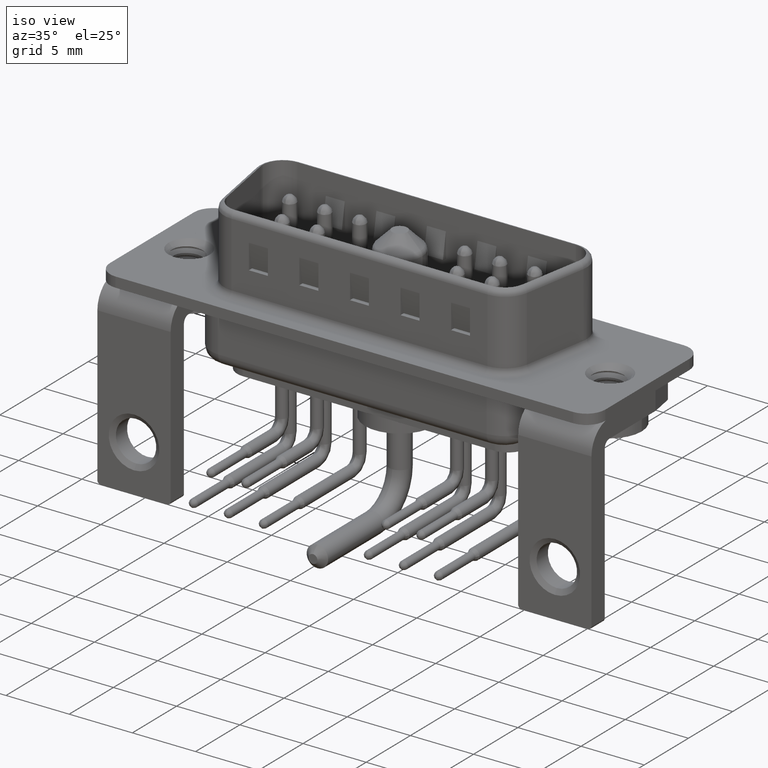
[diagram: clean part render]
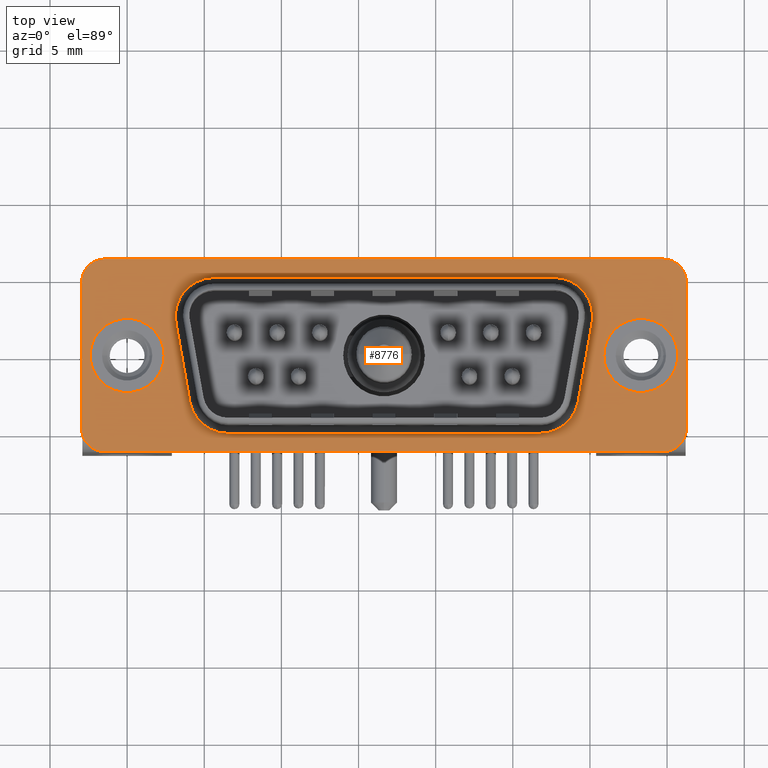
[diagram: tour spotlight — one face highlighted and labeled with its STEP entity id]
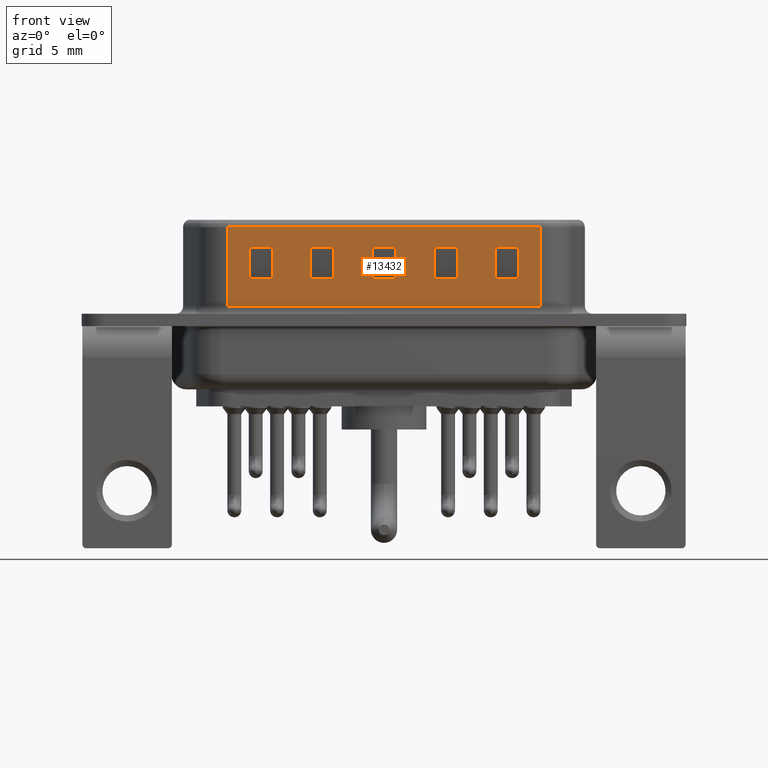
[diagram: tour spotlight — one face highlighted and labeled with its STEP entity id]
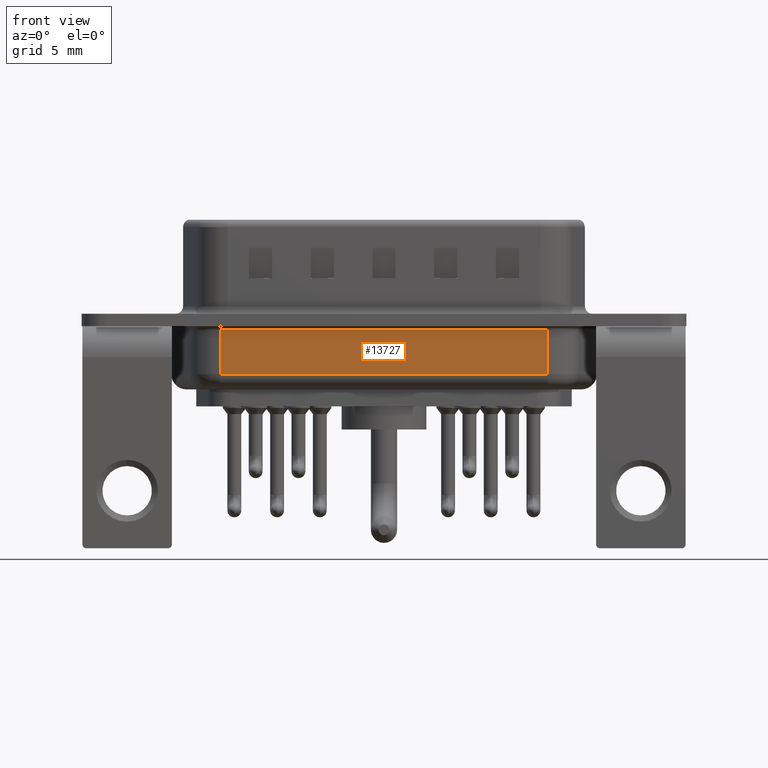
[diagram: tour spotlight — one face highlighted and labeled with its STEP entity id]
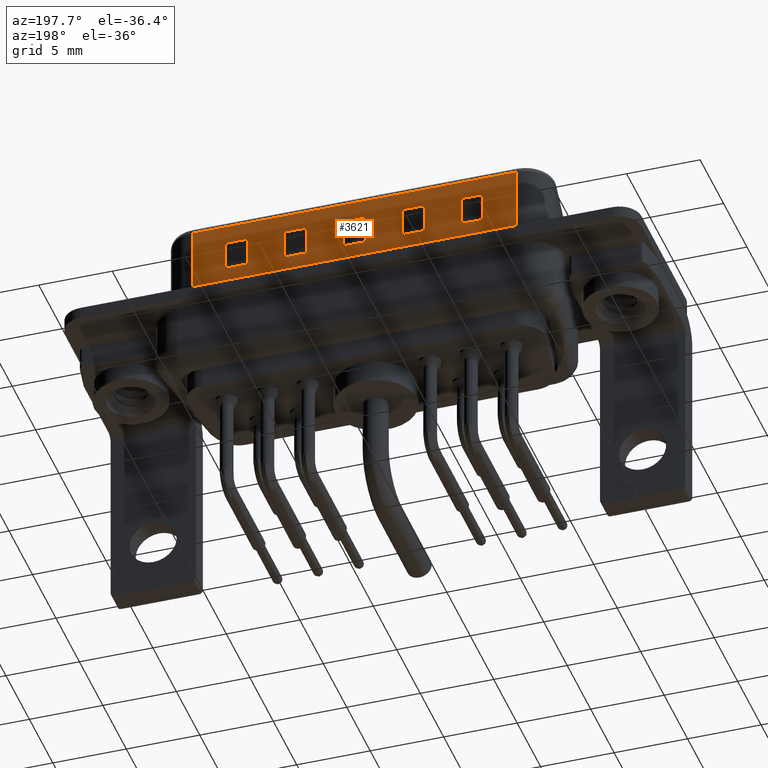
[diagram: tour spotlight — one face highlighted and labeled with its STEP entity id]
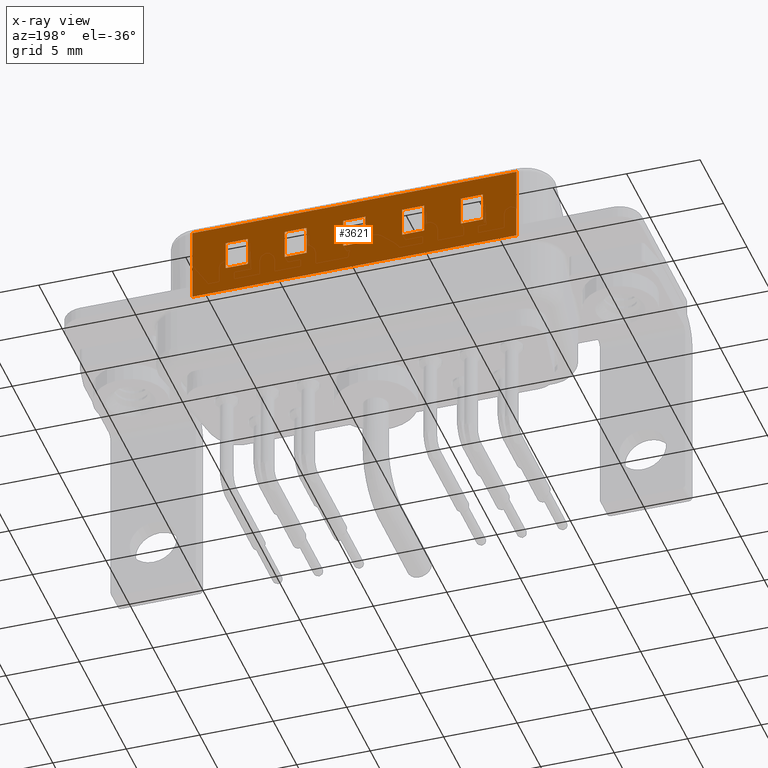
[diagram: x-ray of the same camera — body ghosted, this tour face saturated]
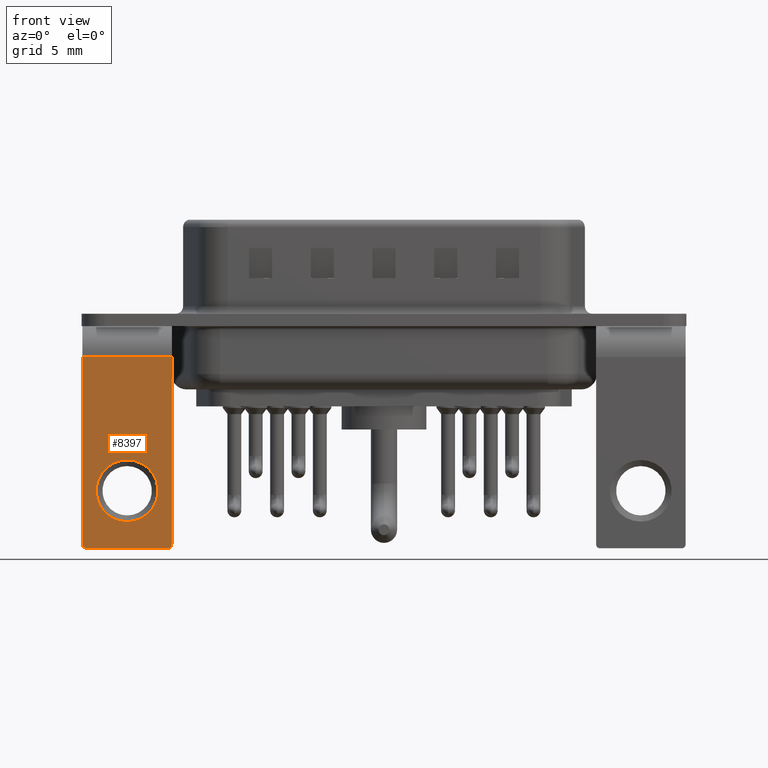
[diagram: tour spotlight — one face highlighted and labeled with its STEP entity id]
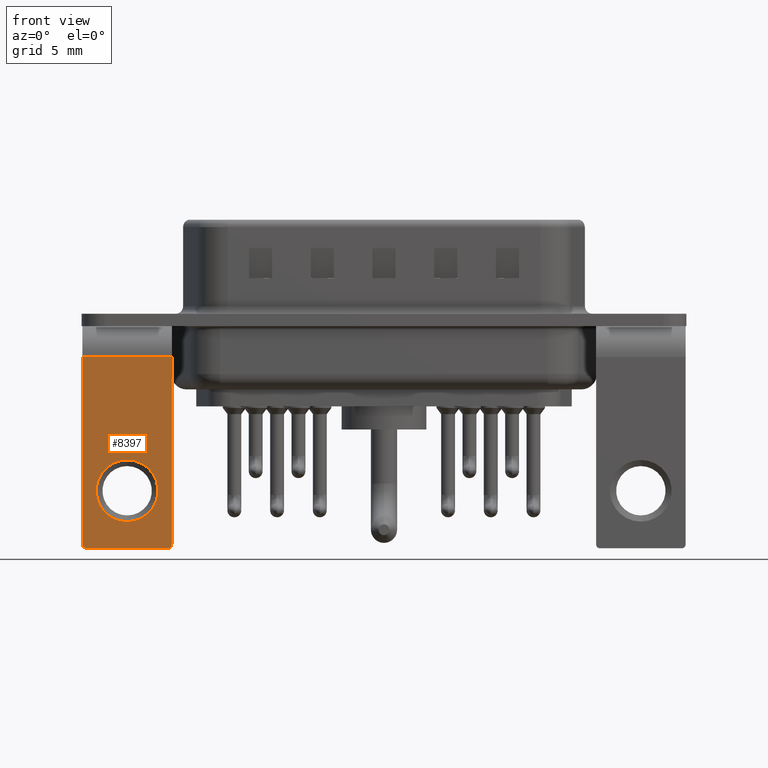
[diagram: tour spotlight — one face highlighted and labeled with its STEP entity id]
A machine part: a face-by-face anatomy tour. The part has 1544 B-rep faces; the first image is the clean iso view, then the 6 largest visible faces are spotlighted one at a time (largest first), each with its STEP entity span.

Face 1 — top view, entity #8776. In plain terms, the highlighted planar face has unit normal (0, 0, 1).
Definition (entity closure, byte-faithful):
#232 = VERTEX_POINT ( 'NONE', #19672 ) ;
#266 = CIRCLE ( 'NONE', #14997, 2.500000000000000444 ) ;
#274 = CARTESIAN_POINT ( 'NONE',  ( 34.75000000000002132, 6.250000000000001776, 0.4000000000000000222 ) ) ;
#366 = DIRECTION ( 'NONE',  ( 0.0000000000000000000, 0.0000000000000000000, 1.000000000000000000 ) ) ;
#540 = DIRECTION ( 'NONE',  ( 1.000000000000000000, 0.0000000000000000000, 0.0000000000000000000 ) ) ;
#544 = ORIENTED_EDGE ( 'NONE', *, *, #18176, .T. ) ;
#602 = CARTESIAN_POINT ( 'NONE',  ( 33.29999999999999716, 6.117110761741028223E-15, 0.4000000000000000222 ) ) ;
#1076 = ORIENTED_EDGE ( 'NONE', *, *, #3041, .T. ) ;
#1396 = EDGE_CURVE ( 'NONE', #1477, #19400, #13700, .T. ) ;
#1474 = DIRECTION ( 'NONE',  ( -1.000000000000000000, 0.0000000000000000000, 0.0000000000000000000 ) ) ;
#1477 = VERTEX_POINT ( 'NONE', #21201 ) ;
#1996 = CIRCLE ( 'NONE', #3530, 2.399999999999999467 ) ;
#2229 = ORIENTED_EDGE ( 'NONE', *, *, #9382, .T. ) ;
#2250 = CARTESIAN_POINT ( 'NONE',  ( -2.949999999999978861, -4.750000000000003553, 0.4000000000000000222 ) ) ;
#2521 = DIRECTION ( 'NONE',  ( 0.0000000000000000000, 0.0000000000000000000, 1.000000000000000000 ) ) ;
#2526 = AXIS2_PLACEMENT_3D ( 'NONE', #14196, #21376, #19596 ) ;
#2560 = AXIS2_PLACEMENT_3D ( 'NONE', #16377, #20123, #19787 ) ;
#2573 = DIRECTION ( 'NONE',  ( 0.0000000000000000000, 0.0000000000000000000, 1.000000000000000000 ) ) ;
#2722 = LINE ( 'NONE', #2250, #12038 ) ;
#2899 = EDGE_CURVE ( 'NONE', #10345, #3461, #19079, .T. ) ;
#3041 = EDGE_CURVE ( 'NONE', #22087, #10511, #8857, .T. ) ;
#3051 = EDGE_LOOP ( 'NONE', ( #10866, #17325 ) ) ;
#3186 = LINE ( 'NONE', #22660, #21805 ) ;
#3347 = VECTOR ( 'NONE', #16316, 999.9999999999998863 ) ;
#3353 = EDGE_CURVE ( 'NONE', #22995, #22191, #16756, .T. ) ;
#3428 = ORIENTED_EDGE ( 'NONE', *, *, #5004, .T. ) ;
#3461 = VERTEX_POINT ( 'NONE', #10933 ) ;
#3530 = AXIS2_PLACEMENT_3D ( 'NONE', #602, #366, #19839 ) ;
#3629 = CARTESIAN_POINT ( 'NONE',  ( 30.13701938253055346, 2.115879555832690162, 0.4000000000000000222 ) ) ;
#4020 = VECTOR ( 'NONE', #4902, 1000.000000000000000 ) ;
#4636 = DIRECTION ( 'NONE',  ( -0.1736481776669238364, -0.9848077530122092416, 0.0000000000000000000 ) ) ;
#4863 = EDGE_LOOP ( 'NONE', ( #12409, #13659 ) ) ;
#4902 = DIRECTION ( 'NONE',  ( -1.000000000000000000, -0.0000000000000000000, -0.0000000000000000000 ) ) ;
#5004 = EDGE_CURVE ( 'NONE', #10883, #14254, #22090, .T. ) ;
#5007 = CARTESIAN_POINT ( 'NONE',  ( 29.23775178091741722, -2.984120444167310371, 0.4000000000000000222 ) ) ;
#5148 = AXIS2_PLACEMENT_3D ( 'NONE', #7521, #23330, #18249 ) ;
#5204 = CIRCLE ( 'NONE', #18380, 2.500000000000000444 ) ;
#5209 = CARTESIAN_POINT ( 'NONE',  ( 36.25000000000003553, 4.750000000000002665, 0.4000000000000000222 ) ) ;
#5423 = EDGE_LOOP ( 'NONE', ( #16651, #3428, #21780, #22568, #5492, #544, #9112, #18907, #13785 ) ) ;
#5492 = ORIENTED_EDGE ( 'NONE', *, *, #2899, .T. ) ;
#5793 = VERTEX_POINT ( 'NONE', #19429 ) ;
#6116 = DIRECTION ( 'NONE',  ( -0.0000000000000000000, -0.0000000000000000000, -1.000000000000000000 ) ) ;
#6189 = CARTESIAN_POINT ( 'NONE',  ( -1.449999999999979083, 4.749999999999998224, 0.4000000000000000222 ) ) ;
#6338 = CARTESIAN_POINT ( 'NONE',  ( 34.75000000000002132, 4.750000000000002665, 0.4000000000000000222 ) ) ;
#6462 = EDGE_CURVE ( 'NONE', #232, #10548, #13496, .T. ) ;
#6662 = EDGE_CURVE ( 'NONE', #6814, #5793, #5204, .T. ) ;
#6721 = CARTESIAN_POINT ( 'NONE',  ( -2.400000000000000355, 2.939152317953647599E-16, 0.4000000000000000222 ) ) ;
#6814 = VERTEX_POINT ( 'NONE', #15696 ) ;
#6878 = EDGE_CURVE ( 'NONE', #22191, #12619, #10392, .T. ) ;
#6949 = DIRECTION ( 'NONE',  ( 1.000000000000000000, 1.198013450260225970E-16, -0.0000000000000000000 ) ) ;
#7067 = VECTOR ( 'NONE', #6949, 1000.000000000000000 ) ;
#7256 = CARTESIAN_POINT ( 'NONE',  ( 27.67500000000002558, 2.549999999999998490, 0.3999999999999999667 ) ) ;
#7311 = DIRECTION ( 'NONE',  ( 1.000000000000000000, 0.0000000000000000000, 0.0000000000000000000 ) ) ;
#7484 = CARTESIAN_POINT ( 'NONE',  ( 35.69999999999999574, 6.117110761741028223E-15, 0.4000000000000000222 ) ) ;
#7521 = CARTESIAN_POINT ( 'NONE',  ( 26.77573239838689290, -2.550000000000002931, 0.3999999999999999667 ) ) ;
#7536 = EDGE_CURVE ( 'NONE', #9697, #13958, #266, .T. ) ;
#7762 = AXIS2_PLACEMENT_3D ( 'NONE', #6189, #2521, #11637 ) ;
#7935 = EDGE_CURVE ( 'NONE', #8246, #22087, #9913, .T. ) ;
#8186 = EDGE_CURVE ( 'NONE', #14254, #11956, #8248, .T. ) ;
#8197 = AXIS2_PLACEMENT_3D ( 'NONE', #10716, #8954, #16153 ) ;
#8246 = VERTEX_POINT ( 'NONE', #18142 ) ;
#8248 = CIRCLE ( 'NONE', #2560, 2.500000000000002220 ) ;
#8459 = EDGE_CURVE ( 'NONE', #19400, #1477, #20985, .T. ) ;
#8650 = DIRECTION ( 'NONE',  ( 1.000000000000000000, -0.0000000000000000000, -0.0000000000000000000 ) ) ;
#8776 = ADVANCED_FACE ( 'NONE', ( #16247, #16034, #17907, #19983 ), #19653, .T. ) ;
#8857 = CIRCLE ( 'NONE', #10802, 1.500000000000001332 ) ;
#8945 = AXIS2_PLACEMENT_3D ( 'NONE', #11093, #9088, #7311 ) ;
#8954 = DIRECTION ( 'NONE',  ( 0.0000000000000000000, 0.0000000000000000000, 1.000000000000000000 ) ) ;
#8991 = CIRCLE ( 'NONE', #13516, 1.499999999999994449 ) ;
#9088 = DIRECTION ( 'NONE',  ( 0.0000000000000000000, 0.0000000000000000000, 1.000000000000000000 ) ) ;
#9112 = ORIENTED_EDGE ( 'NONE', *, *, #6662, .T. ) ;
#9270 = CARTESIAN_POINT ( 'NONE',  ( -2.949999999999978861, -4.750000000000003553, 0.4000000000000000222 ) ) ;
#9382 = EDGE_CURVE ( 'NONE', #10511, #17209, #18439, .T. ) ;
#9697 = VERTEX_POINT ( 'NONE', #18174 ) ;
#9799 = DIRECTION ( 'NONE',  ( 1.000000000000000000, 0.0000000000000000000, 0.0000000000000000000 ) ) ;
#9883 = DIRECTION ( 'NONE',  ( 0.0000000000000000000, 0.0000000000000000000, 1.000000000000000000 ) ) ;
#9893 = ORIENTED_EDGE ( 'NONE', *, *, #16507, .T. ) ;
#9913 = LINE ( 'NONE', #16879, #18751 ) ;
#10345 = VERTEX_POINT ( 'NONE', #5007 ) ;
#10392 = LINE ( 'NONE', #22984, #7067 ) ;
#10511 = VERTEX_POINT ( 'NONE', #274 ) ;
#10548 = VERTEX_POINT ( 'NONE', #7484 ) ;
#10716 = CARTESIAN_POINT ( 'NONE',  ( 34.75000000000002132, 4.750000000000002665, 0.4000000000000000222 ) ) ;
#10802 = AXIS2_PLACEMENT_3D ( 'NONE', #6338, #9883, #540 ) ;
#10866 = ORIENTED_EDGE ( 'NONE', *, *, #1396, .F. ) ;
#10883 = VERTEX_POINT ( 'NONE', #17154 ) ;
#10933 = CARTESIAN_POINT ( 'NONE',  ( 26.77573239838689290, -5.050000000000002487, 0.4000000000000000222 ) ) ;
#11093 = CARTESIAN_POINT ( 'NONE',  ( 33.29999999999999716, 6.117110761741028223E-15, 0.4000000000000000222 ) ) ;
#11192 = AXIS2_PLACEMENT_3D ( 'NONE', #7256, #12110, #12570 ) ;
#11264 = CARTESIAN_POINT ( 'NONE',  ( 34.75000000000002132, 6.250000000000001776, 0.4000000000000000222 ) ) ;
#11326 = CARTESIAN_POINT ( 'NONE',  ( 0.0000000000000000000, 0.0000000000000000000, 0.4000000000000000222 ) ) ;
#11637 = DIRECTION ( 'NONE',  ( 1.000000000000000000, 0.0000000000000000000, 0.0000000000000000000 ) ) ;
#11857 = LINE ( 'NONE', #13974, #17307 ) ;
#11952 = DIRECTION ( 'NONE',  ( -0.0000000000000000000, -0.0000000000000000000, -1.000000000000000000 ) ) ;
#11956 = VERTEX_POINT ( 'NONE', #3629 ) ;
#12038 = VECTOR ( 'NONE', #13358, 1000.000000000000000 ) ;
#12110 = DIRECTION ( 'NONE',  ( -0.0000000000000000000, -0.0000000000000000000, -1.000000000000000000 ) ) ;
#12409 = ORIENTED_EDGE ( 'NONE', *, *, #21692, .F. ) ;
#12570 = DIRECTION ( 'NONE',  ( 1.000000000000000000, 0.0000000000000000000, 0.0000000000000000000 ) ) ;
#12619 = VERTEX_POINT ( 'NONE', #17456 ) ;
#12739 = CARTESIAN_POINT ( 'NONE',  ( 5.625000000000016875, 5.049999999999998934, 0.4000000000000000222 ) ) ;
#13358 = DIRECTION ( 'NONE',  ( -0.0000000000000000000, -1.000000000000000000, -0.0000000000000000000 ) ) ;
#13426 = CIRCLE ( 'NONE', #7762, 1.500000000000000000 ) ;
#13496 = CIRCLE ( 'NONE', #8945, 2.399999999999999467 ) ;
#13507 = CARTESIAN_POINT ( 'NONE',  ( 34.75000000000002132, -4.749999999999999112, 0.4000000000000000222 ) ) ;
#13516 = AXIS2_PLACEMENT_3D ( 'NONE', #13507, #20435, #18803 ) ;
#13596 = DIRECTION ( 'NONE',  ( 1.000000000000000000, 8.673617379884033500E-16, 0.0000000000000000000 ) ) ;
#13659 = ORIENTED_EDGE ( 'NONE', *, *, #6462, .F. ) ;
#13700 = CIRCLE ( 'NONE', #16322, 2.400000000000000355 ) ;
#13776 = CARTESIAN_POINT ( 'NONE',  ( -1.449999999999979083, -4.750000000000003553, 0.4000000000000000222 ) ) ;
#13785 = ORIENTED_EDGE ( 'NONE', *, *, #7536, .T. ) ;
#13838 = CARTESIAN_POINT ( 'NONE',  ( 5.625000000000016875, 2.549999999999998490, 0.3999999999999999667 ) ) ;
#13958 = VERTEX_POINT ( 'NONE', #12739 ) ;
#13974 = CARTESIAN_POINT ( 'NONE',  ( 30.72657889415861021, 5.459437695711705452, 0.4000000000000000222 ) ) ;
#14196 = CARTESIAN_POINT ( 'NONE',  ( 0.0000000000000000000, 0.0000000000000000000, 0.4000000000000000222 ) ) ;
#14254 = VERTEX_POINT ( 'NONE', #22626 ) ;
#14425 = LINE ( 'NONE', #21839, #3347 ) ;
#14782 = DIRECTION ( 'NONE',  ( -1.000000000000000000, -9.584107602081808255E-17, 0.0000000000000000000 ) ) ;
#14956 = CARTESIAN_POINT ( 'NONE',  ( -2.949999999999978861, 4.749999999999998224, 0.4000000000000000222 ) ) ;
#14997 = AXIS2_PLACEMENT_3D ( 'NONE', #13838, #11952, #13596 ) ;
#15517 = CARTESIAN_POINT ( 'NONE',  ( -1.449999999999979305, 6.249999999999998224, 0.4000000000000000222 ) ) ;
#15669 = LINE ( 'NONE', #23070, #4020 ) ;
#15696 = CARTESIAN_POINT ( 'NONE',  ( 6.524267601613152223, -5.050000000000002487, 0.4000000000000000222 ) ) ;
#15709 = ORIENTED_EDGE ( 'NONE', *, *, #7935, .T. ) ;
#16034 = FACE_BOUND ( 'NONE', #4863, .T. ) ;
#16153 = DIRECTION ( 'NONE',  ( 1.000000000000000000, 0.0000000000000000000, -0.0000000000000000000 ) ) ;
#16247 = FACE_BOUND ( 'NONE', #3051, .T. ) ;
#16316 = DIRECTION ( 'NONE',  ( -0.1736481776669235033, 0.9848077530122093526, -0.0000000000000000000 ) ) ;
#16322 = AXIS2_PLACEMENT_3D ( 'NONE', #11326, #2573, #18496 ) ;
#16377 = CARTESIAN_POINT ( 'NONE',  ( 27.67500000000002558, 2.549999999999998490, 0.3999999999999999667 ) ) ;
#16507 = EDGE_CURVE ( 'NONE', #12619, #8246, #8991, .T. ) ;
#16651 = ORIENTED_EDGE ( 'NONE', *, *, #17776, .T. ) ;
#16756 = CIRCLE ( 'NONE', #22015, 1.499999999999999556 ) ;
#16879 = CARTESIAN_POINT ( 'NONE',  ( 36.25000000000002132, -4.749999999999999112, 0.4000000000000000222 ) ) ;
#16985 = CARTESIAN_POINT ( 'NONE',  ( 6.524267601613152223, -2.550000000000002931, 0.3999999999999999667 ) ) ;
#17106 = DIRECTION ( 'NONE',  ( 1.460819769243626736E-15, 1.000000000000000000, 0.0000000000000000000 ) ) ;
#17154 = CARTESIAN_POINT ( 'NONE',  ( 27.67500000000002558, 5.049999999999998934, 0.4000000000000000222 ) ) ;
#17209 = VERTEX_POINT ( 'NONE', #15517 ) ;
#17210 = EDGE_CURVE ( 'NONE', #11956, #10345, #11857, .T. ) ;
#17307 = VECTOR ( 'NONE', #4636, 1000.000000000000000 ) ;
#17324 = EDGE_CURVE ( 'NONE', #5793, #9697, #14425, .T. ) ;
#17325 = ORIENTED_EDGE ( 'NONE', *, *, #8459, .F. ) ;
#17456 = CARTESIAN_POINT ( 'NONE',  ( 34.75000000000002132, -6.249999999999996447, 0.4000000000000000222 ) ) ;
#17555 = EDGE_CURVE ( 'NONE', #20362, #22995, #2722, .T. ) ;
#17776 = EDGE_CURVE ( 'NONE', #13958, #10883, #3186, .T. ) ;
#17907 = FACE_BOUND ( 'NONE', #5423, .T. ) ;
#18142 = CARTESIAN_POINT ( 'NONE',  ( 36.25000000000002132, -4.749999999999999112, 0.4000000000000000222 ) ) ;
#18158 = CARTESIAN_POINT ( 'NONE',  ( -1.449999999999978861, -6.250000000000002665, 0.4000000000000000222 ) ) ;
#18174 = CARTESIAN_POINT ( 'NONE',  ( 3.162980617469493438, 2.115879555832691050, 0.4000000000000000222 ) ) ;
#18176 = EDGE_CURVE ( 'NONE', #3461, #6814, #15669, .T. ) ;
#18249 = DIRECTION ( 'NONE',  ( 1.000000000000000000, 0.0000000000000000000, 0.0000000000000000000 ) ) ;
#18380 = AXIS2_PLACEMENT_3D ( 'NONE', #16985, #6116, #9799 ) ;
#18427 = ORIENTED_EDGE ( 'NONE', *, *, #6878, .T. ) ;
#18439 = LINE ( 'NONE', #11264, #21551 ) ;
#18496 = DIRECTION ( 'NONE',  ( 1.000000000000000000, 0.0000000000000000000, 0.0000000000000000000 ) ) ;
#18542 = EDGE_CURVE ( 'NONE', #17209, #20362, #13426, .T. ) ;
#18751 = VECTOR ( 'NONE', #17106, 1000.000000000000000 ) ;
#18803 = DIRECTION ( 'NONE',  ( 1.000000000000000000, 0.0000000000000000000, 0.0000000000000000000 ) ) ;
#18907 = ORIENTED_EDGE ( 'NONE', *, *, #17324, .T. ) ;
#19079 = CIRCLE ( 'NONE', #5148, 2.499999999999998668 ) ;
#19232 = ORIENTED_EDGE ( 'NONE', *, *, #18542, .T. ) ;
#19400 = VERTEX_POINT ( 'NONE', #6721 ) ;
#19429 = CARTESIAN_POINT ( 'NONE',  ( 4.062248219082628786, -2.984120444167310371, 0.4000000000000000222 ) ) ;
#19596 = DIRECTION ( 'NONE',  ( 1.000000000000000000, 0.0000000000000000000, 0.0000000000000000000 ) ) ;
#19653 = PLANE ( 'NONE',  #8197 ) ;
#19672 = CARTESIAN_POINT ( 'NONE',  ( 30.89999999999999858, 6.411025993536392737E-15, 0.4000000000000000222 ) ) ;
#19787 = DIRECTION ( 'NONE',  ( 1.000000000000000000, 0.0000000000000000000, 0.0000000000000000000 ) ) ;
#19839 = DIRECTION ( 'NONE',  ( 1.000000000000000000, 0.0000000000000000000, 0.0000000000000000000 ) ) ;
#19983 = FACE_OUTER_BOUND ( 'NONE', #20295, .T. ) ;
#20123 = DIRECTION ( 'NONE',  ( -0.0000000000000000000, -0.0000000000000000000, -1.000000000000000000 ) ) ;
#20295 = EDGE_LOOP ( 'NONE', ( #1076, #2229, #19232, #22534, #20784, #18427, #9893, #15709 ) ) ;
#20362 = VERTEX_POINT ( 'NONE', #14956 ) ;
#20435 = DIRECTION ( 'NONE',  ( 0.0000000000000000000, 0.0000000000000000000, 1.000000000000000000 ) ) ;
#20784 = ORIENTED_EDGE ( 'NONE', *, *, #3353, .T. ) ;
#20985 = CIRCLE ( 'NONE', #2526, 2.400000000000000355 ) ;
#21068 = DIRECTION ( 'NONE',  ( 0.0000000000000000000, 0.0000000000000000000, 1.000000000000000000 ) ) ;
#21201 = CARTESIAN_POINT ( 'NONE',  ( 2.400000000000000355, 0.0000000000000000000, 0.4000000000000000222 ) ) ;
#21376 = DIRECTION ( 'NONE',  ( 0.0000000000000000000, 0.0000000000000000000, 1.000000000000000000 ) ) ;
#21551 = VECTOR ( 'NONE', #14782, 1000.000000000000000 ) ;
#21692 = EDGE_CURVE ( 'NONE', #10548, #232, #1996, .T. ) ;
#21780 = ORIENTED_EDGE ( 'NONE', *, *, #8186, .T. ) ;
#21805 = VECTOR ( 'NONE', #8650, 1000.000000000000000 ) ;
#21839 = CARTESIAN_POINT ( 'NONE',  ( 3.664984669616417445, -0.7311268984826618800, 0.4000000000000000222 ) ) ;
#22015 = AXIS2_PLACEMENT_3D ( 'NONE', #13776, #21068, #1474 ) ;
#22087 = VERTEX_POINT ( 'NONE', #5209 ) ;
#22090 = CIRCLE ( 'NONE', #11192, 2.500000000000002220 ) ;
#22191 = VERTEX_POINT ( 'NONE', #18158 ) ;
#22534 = ORIENTED_EDGE ( 'NONE', *, *, #17555, .T. ) ;
#22568 = ORIENTED_EDGE ( 'NONE', *, *, #17210, .T. ) ;
#22626 = CARTESIAN_POINT ( 'NONE',  ( 30.17500000000002913, 2.549999999999998490, 0.3999999999999998557 ) ) ;
#22660 = CARTESIAN_POINT ( 'NONE',  ( 34.75000000000002132, 5.049999999999998934, 0.4000000000000000222 ) ) ;
#22984 = CARTESIAN_POINT ( 'NONE',  ( 34.75000000000002132, -6.249999999999998224, 0.4000000000000000222 ) ) ;
#22995 = VERTEX_POINT ( 'NONE', #9270 ) ;
#23070 = CARTESIAN_POINT ( 'NONE',  ( 34.75000000000002132, -5.050000000000002487, 0.4000000000000000222 ) ) ;
#23330 = DIRECTION ( 'NONE',  ( -0.0000000000000000000, -0.0000000000000000000, -1.000000000000000000 ) ) ;

Face 2 — front view, entity #13432. In plain terms, the highlighted planar face has unit normal (0, 1, 0).
Definition (entity closure, byte-faithful):
#92 = EDGE_CURVE ( 'NONE', #21108, #16293, #1502, .T. ) ;
#114 = FACE_BOUND ( 'NONE', #11040, .T. ) ;
#289 = VECTOR ( 'NONE', #15101, 1000.000000000000000 ) ;
#333 = VECTOR ( 'NONE', #9828, 1000.000000000000000 ) ;
#352 = DIRECTION ( 'NONE',  ( 0.0000000000000000000, -0.0000000000000000000, -1.000000000000000000 ) ) ;
#528 = ORIENTED_EDGE ( 'NONE', *, *, #18267, .T. ) ;
#566 = CARTESIAN_POINT ( 'NONE',  ( 13.40000000000001990, -4.550000000000002487, 2.704948974278316154 ) ) ;
#691 = LINE ( 'NONE', #20375, #289 ) ;
#734 = ORIENTED_EDGE ( 'NONE', *, *, #7220, .T. ) ;
#871 = FACE_BOUND ( 'NONE', #20769, .T. ) ;
#1079 = CARTESIAN_POINT ( 'NONE',  ( 25.40000000000001990, -4.550000000000002487, 2.704948974278316154 ) ) ;
#1225 = FACE_BOUND ( 'NONE', #2077, .T. ) ;
#1457 = DIRECTION ( 'NONE',  ( 0.0000000000000000000, 0.0000000000000000000, 1.000000000000000000 ) ) ;
#1467 = LINE ( 'NONE', #3368, #7647 ) ;
#1502 = LINE ( 'NONE', #8735, #10731 ) ;
#1640 = CARTESIAN_POINT ( 'NONE',  ( 6.524267601613152223, -4.550000000000002487, 0.8999999999999998002 ) ) ;
#1791 = CARTESIAN_POINT ( 'NONE',  ( 21.40000000000001990, -4.550000000000002487, 6.520000000000000462 ) ) ;
#2077 = EDGE_LOOP ( 'NONE', ( #19807, #11342, #4288, #11034 ) ) ;
#2168 = EDGE_CURVE ( 'NONE', #19847, #4135, #7491, .T. ) ;
#2193 = EDGE_CURVE ( 'NONE', #6117, #7227, #3806, .T. ) ;
#2508 = DIRECTION ( 'NONE',  ( -1.000000000000000000, 0.0000000000000000000, 0.0000000000000000000 ) ) ;
#2511 = CARTESIAN_POINT ( 'NONE',  ( 23.90000000000001990, -4.550000000000002487, 6.520000000000000462 ) ) ;
#2871 = VERTEX_POINT ( 'NONE', #3154 ) ;
#3057 = DIRECTION ( 'NONE',  ( -0.0000000000000000000, -0.0000000000000000000, -1.000000000000000000 ) ) ;
#3154 = CARTESIAN_POINT ( 'NONE',  ( 6.524267601613152223, -4.550000000000002487, 6.020000000000001350 ) ) ;
#3241 = DIRECTION ( 'NONE',  ( -0.0000000000000000000, -0.0000000000000000000, -1.000000000000000000 ) ) ;
#3368 = CARTESIAN_POINT ( 'NONE',  ( 26.77573239838689290, -4.550000000000002487, 6.520000000000000462 ) ) ;
#3376 = LINE ( 'NONE', #13897, #8571 ) ;
#3573 = EDGE_CURVE ( 'NONE', #14467, #20158, #6186, .T. ) ;
#3576 = LINE ( 'NONE', #10568, #7084 ) ;
#3630 = CARTESIAN_POINT ( 'NONE',  ( 7.900000000000018119, -4.550000000000002487, 6.520000000000000462 ) ) ;
#3799 = LINE ( 'NONE', #10688, #13687 ) ;
#3806 = LINE ( 'NONE', #22113, #14743 ) ;
#3856 = EDGE_CURVE ( 'NONE', #20470, #2871, #16110, .T. ) ;
#3880 = VECTOR ( 'NONE', #11622, 1000.000000000000000 ) ;
#4135 = VERTEX_POINT ( 'NONE', #1079 ) ;
#4179 = VECTOR ( 'NONE', #3057, 1000.000000000000000 ) ;
#4268 = ORIENTED_EDGE ( 'NONE', *, *, #92, .T. ) ;
#4280 = LINE ( 'NONE', #6052, #4778 ) ;
#4288 = ORIENTED_EDGE ( 'NONE', *, *, #5851, .T. ) ;
#4369 = VERTEX_POINT ( 'NONE', #1640 ) ;
#4402 = CARTESIAN_POINT ( 'NONE',  ( 11.90000000000001812, -4.550000000000002487, 6.520000000000000462 ) ) ;
#4778 = VECTOR ( 'NONE', #2508, 1000.000000000000000 ) ;
#4825 = DIRECTION ( 'NONE',  ( -1.000000000000000000, 0.0000000000000000000, 0.0000000000000000000 ) ) ;
#5035 = CARTESIAN_POINT ( 'NONE',  ( 17.40000000000001990, -4.550000000000003375, 2.704948974278316154 ) ) ;
#5116 = CARTESIAN_POINT ( 'NONE',  ( 26.77573239838689290, -4.550000000000002487, 6.020000000000001350 ) ) ;
#5302 = EDGE_CURVE ( 'NONE', #11430, #11247, #4280, .T. ) ;
#5345 = LINE ( 'NONE', #1791, #11219 ) ;
#5409 = LINE ( 'NONE', #19451, #16669 ) ;
#5463 = VERTEX_POINT ( 'NONE', #7683 ) ;
#5799 = ORIENTED_EDGE ( 'NONE', *, *, #17050, .T. ) ;
#5822 = DIRECTION ( 'NONE',  ( 1.000000000000000000, 0.0000000000000000000, 0.0000000000000000000 ) ) ;
#5851 = EDGE_CURVE ( 'NONE', #15507, #21313, #19891, .T. ) ;
#5953 = DIRECTION ( 'NONE',  ( -1.000000000000000000, 0.0000000000000000000, 0.0000000000000000000 ) ) ;
#6052 = CARTESIAN_POINT ( 'NONE',  ( 30.77573239838689290, -4.550000000000002487, 2.704948974278316154 ) ) ;
#6057 = CARTESIAN_POINT ( 'NONE',  ( 25.40000000000001990, -4.550000000000002487, 6.520000000000000462 ) ) ;
#6117 = VERTEX_POINT ( 'NONE', #17068 ) ;
#6157 = CARTESIAN_POINT ( 'NONE',  ( 15.90000000000001812, -4.550000000000002487, 2.704948974278316154 ) ) ;
#6186 = LINE ( 'NONE', #11160, #23173 ) ;
#6353 = ORIENTED_EDGE ( 'NONE', *, *, #3573, .T. ) ;
#6526 = LINE ( 'NONE', #2511, #13554 ) ;
#6571 = VERTEX_POINT ( 'NONE', #17099 ) ;
#6609 = EDGE_CURVE ( 'NONE', #12100, #20508, #691, .T. ) ;
#6826 = VECTOR ( 'NONE', #14929, 1000.000000000000000 ) ;
#6932 = AXIS2_PLACEMENT_3D ( 'NONE', #8448, #21709, #1457 ) ;
#7084 = VECTOR ( 'NONE', #21152, 1000.000000000000000 ) ;
#7220 = EDGE_CURVE ( 'NONE', #4369, #10750, #3576, .T. ) ;
#7227 = VERTEX_POINT ( 'NONE', #17987 ) ;
#7298 = EDGE_CURVE ( 'NONE', #7227, #11430, #5345, .T. ) ;
#7447 = ORIENTED_EDGE ( 'NONE', *, *, #15550, .T. ) ;
#7491 = LINE ( 'NONE', #6057, #6826 ) ;
#7516 = CARTESIAN_POINT ( 'NONE',  ( 26.77573239838689290, -4.550000000000002487, 6.020000000000001350 ) ) ;
#7647 = VECTOR ( 'NONE', #3241, 1000.000000000000000 ) ;
#7683 = CARTESIAN_POINT ( 'NONE',  ( 15.90000000000001812, -4.549999999999998046, 4.704948974278313045 ) ) ;
#7743 = DIRECTION ( 'NONE',  ( 1.000000000000000000, 0.0000000000000000000, 0.0000000000000000000 ) ) ;
#7953 = DIRECTION ( 'NONE',  ( 0.0000000000000000000, 0.0000000000000000000, 1.000000000000000000 ) ) ;
#8121 = CARTESIAN_POINT ( 'NONE',  ( 25.40000000000001990, -4.549999999999998046, 4.704948974278313045 ) ) ;
#8329 = ORIENTED_EDGE ( 'NONE', *, *, #10514, .T. ) ;
#8369 = LINE ( 'NONE', #13915, #15213 ) ;
#8422 = DIRECTION ( 'NONE',  ( -1.000000000000000000, 0.0000000000000000000, 0.0000000000000000000 ) ) ;
#8448 = CARTESIAN_POINT ( 'NONE',  ( 26.77573239838689290, -4.550000000000002487, 6.520000000000000462 ) ) ;
#8571 = VECTOR ( 'NONE', #17777, 1000.000000000000000 ) ;
#8735 = CARTESIAN_POINT ( 'NONE',  ( 22.77573239838689290, -4.550000000000002487, 2.704948974278316154 ) ) ;
#8992 = VECTOR ( 'NONE', #7743, 1000.000000000000000 ) ;
#9085 = CARTESIAN_POINT ( 'NONE',  ( 21.40000000000001990, -4.550000000000002487, 2.704948974278316154 ) ) ;
#9103 = FACE_OUTER_BOUND ( 'NONE', #9244, .T. ) ;
#9244 = EDGE_LOOP ( 'NONE', ( #12364, #17019, #18324, #734 ) ) ;
#9500 = CARTESIAN_POINT ( 'NONE',  ( 17.40000000000001990, -4.550000000000002487, 6.520000000000000462 ) ) ;
#9828 = DIRECTION ( 'NONE',  ( 0.0000000000000000000, -0.0000000000000000000, -1.000000000000000000 ) ) ;
#10103 = EDGE_CURVE ( 'NONE', #10480, #15507, #5409, .T. ) ;
#10480 = VERTEX_POINT ( 'NONE', #18851 ) ;
#10514 = EDGE_CURVE ( 'NONE', #5463, #6571, #3799, .T. ) ;
#10539 = ORIENTED_EDGE ( 'NONE', *, *, #2168, .T. ) ;
#10568 = CARTESIAN_POINT ( 'NONE',  ( 26.77573239838689290, -4.550000000000002487, 0.8999999999999998002 ) ) ;
#10633 = EDGE_CURVE ( 'NONE', #16293, #12100, #15151, .T. ) ;
#10688 = CARTESIAN_POINT ( 'NONE',  ( 26.77573239838689290, -4.550000000000002487, 4.704948974278316598 ) ) ;
#10731 = VECTOR ( 'NONE', #4825, 1000.000000000000000 ) ;
#10750 = VERTEX_POINT ( 'NONE', #20199 ) ;
#10868 = DIRECTION ( 'NONE',  ( -1.000000000000000000, 0.0000000000000000000, 0.0000000000000000000 ) ) ;
#10895 = DIRECTION ( 'NONE',  ( 1.000000000000000000, 0.0000000000000000000, 0.0000000000000000000 ) ) ;
#10928 = CARTESIAN_POINT ( 'NONE',  ( 11.90000000000001812, -4.550000000000002487, 2.704948974278316154 ) ) ;
#10995 = CARTESIAN_POINT ( 'NONE',  ( 7.900000000000018119, -4.550000000000002487, 2.704948974278316154 ) ) ;
#11034 = ORIENTED_EDGE ( 'NONE', *, *, #14657, .T. ) ;
#11040 = EDGE_LOOP ( 'NONE', ( #11460, #4268, #18028, #21499 ) ) ;
#11089 = VECTOR ( 'NONE', #352, 1000.000000000000000 ) ;
#11160 = CARTESIAN_POINT ( 'NONE',  ( 26.77573239838689290, -4.550000000000002487, 2.704948974278316154 ) ) ;
#11219 = VECTOR ( 'NONE', #13977, 1000.000000000000000 ) ;
#11247 = VERTEX_POINT ( 'NONE', #15368 ) ;
#11297 = LINE ( 'NONE', #18468, #8992 ) ;
#11308 = EDGE_CURVE ( 'NONE', #2871, #4369, #19328, .T. ) ;
#11342 = ORIENTED_EDGE ( 'NONE', *, *, #10103, .T. ) ;
#11392 = LINE ( 'NONE', #9500, #22933 ) ;
#11430 = VERTEX_POINT ( 'NONE', #9085 ) ;
#11460 = ORIENTED_EDGE ( 'NONE', *, *, #13708, .T. ) ;
#11611 = EDGE_LOOP ( 'NONE', ( #8329, #5799, #6353, #528 ) ) ;
#11622 = DIRECTION ( 'NONE',  ( 0.0000000000000000000, 0.0000000000000000000, 1.000000000000000000 ) ) ;
#12100 = VERTEX_POINT ( 'NONE', #15075 ) ;
#12364 = ORIENTED_EDGE ( 'NONE', *, *, #20716, .F. ) ;
#12556 = DIRECTION ( 'NONE',  ( -1.000000000000000000, -0.0000000000000000000, -0.0000000000000000000 ) ) ;
#12912 = CARTESIAN_POINT ( 'NONE',  ( 7.900000000000018119, -4.549999999999998046, 4.704948974278313045 ) ) ;
#13235 = ORIENTED_EDGE ( 'NONE', *, *, #5302, .T. ) ;
#13432 = ADVANCED_FACE ( 'NONE', ( #871, #114, #1225, #13878, #22942, #9103 ), #19266, .F. ) ;
#13512 = DIRECTION ( 'NONE',  ( 0.0000000000000000000, -0.0000000000000000000, -1.000000000000000000 ) ) ;
#13519 = VECTOR ( 'NONE', #8422, 1000.000000000000000 ) ;
#13554 = VECTOR ( 'NONE', #7953, 1000.000000000000000 ) ;
#13687 = VECTOR ( 'NONE', #19858, 1000.000000000000000 ) ;
#13708 = EDGE_CURVE ( 'NONE', #20508, #21108, #15119, .T. ) ;
#13878 = FACE_BOUND ( 'NONE', #15473, .T. ) ;
#13897 = CARTESIAN_POINT ( 'NONE',  ( 15.90000000000001812, -4.550000000000002487, 6.520000000000000462 ) ) ;
#13915 = CARTESIAN_POINT ( 'NONE',  ( 19.90000000000001990, -4.550000000000002487, 6.520000000000000462 ) ) ;
#13977 = DIRECTION ( 'NONE',  ( 0.0000000000000000000, -0.0000000000000000000, -1.000000000000000000 ) ) ;
#14092 = CARTESIAN_POINT ( 'NONE',  ( 23.90000000000001990, -4.549999999999998046, 4.704948974278313045 ) ) ;
#14467 = VERTEX_POINT ( 'NONE', #5035 ) ;
#14657 = EDGE_CURVE ( 'NONE', #21313, #16003, #11297, .T. ) ;
#14743 = VECTOR ( 'NONE', #5822, 1000.000000000000000 ) ;
#14929 = DIRECTION ( 'NONE',  ( 0.0000000000000000000, -0.0000000000000000000, -1.000000000000000000 ) ) ;
#15073 = CARTESIAN_POINT ( 'NONE',  ( 9.400000000000018119, -4.549999999999998046, 4.704948974278313045 ) ) ;
#15075 = CARTESIAN_POINT ( 'NONE',  ( 11.90000000000001812, -4.549999999999998046, 4.704948974278313045 ) ) ;
#15101 = DIRECTION ( 'NONE',  ( 1.000000000000000000, 0.0000000000000000000, 0.0000000000000000000 ) ) ;
#15119 = LINE ( 'NONE', #16536, #11089 ) ;
#15151 = LINE ( 'NONE', #4402, #3880 ) ;
#15174 = ORIENTED_EDGE ( 'NONE', *, *, #16458, .T. ) ;
#15213 = VECTOR ( 'NONE', #22980, 1000.000000000000000 ) ;
#15368 = CARTESIAN_POINT ( 'NONE',  ( 19.90000000000001990, -4.550000000000002487, 2.704948974278316154 ) ) ;
#15385 = EDGE_CURVE ( 'NONE', #4135, #15484, #22919, .T. ) ;
#15473 = EDGE_LOOP ( 'NONE', ( #16221, #13235, #21407, #17852 ) ) ;
#15484 = VERTEX_POINT ( 'NONE', #16541 ) ;
#15507 = VERTEX_POINT ( 'NONE', #10995 ) ;
#15550 = EDGE_CURVE ( 'NONE', #18705, #19847, #19825, .T. ) ;
#16003 = VERTEX_POINT ( 'NONE', #15073 ) ;
#16110 = LINE ( 'NONE', #5116, #21664 ) ;
#16221 = ORIENTED_EDGE ( 'NONE', *, *, #7298, .T. ) ;
#16293 = VERTEX_POINT ( 'NONE', #10928 ) ;
#16458 = EDGE_CURVE ( 'NONE', #15484, #18705, #6526, .T. ) ;
#16536 = CARTESIAN_POINT ( 'NONE',  ( 13.40000000000001990, -4.550000000000002487, 6.520000000000000462 ) ) ;
#16541 = CARTESIAN_POINT ( 'NONE',  ( 23.90000000000001990, -4.550000000000002487, 2.704948974278316154 ) ) ;
#16669 = VECTOR ( 'NONE', #10868, 1000.000000000000000 ) ;
#17016 = LINE ( 'NONE', #22312, #333 ) ;
#17019 = ORIENTED_EDGE ( 'NONE', *, *, #3856, .T. ) ;
#17050 = EDGE_CURVE ( 'NONE', #6571, #14467, #11392, .T. ) ;
#17068 = CARTESIAN_POINT ( 'NONE',  ( 19.90000000000001990, -4.549999999999998046, 4.704948974278313045 ) ) ;
#17099 = CARTESIAN_POINT ( 'NONE',  ( 17.40000000000001990, -4.549999999999998046, 4.704948974278313045 ) ) ;
#17495 = CARTESIAN_POINT ( 'NONE',  ( 34.77573239838690000, -4.550000000000002487, 2.704948974278316154 ) ) ;
#17546 = EDGE_CURVE ( 'NONE', #16003, #10480, #17016, .T. ) ;
#17777 = DIRECTION ( 'NONE',  ( 0.0000000000000000000, 0.0000000000000000000, 1.000000000000000000 ) ) ;
#17852 = ORIENTED_EDGE ( 'NONE', *, *, #2193, .T. ) ;
#17987 = CARTESIAN_POINT ( 'NONE',  ( 21.40000000000001990, -4.549999999999998046, 4.704948974278313045 ) ) ;
#18028 = ORIENTED_EDGE ( 'NONE', *, *, #10633, .T. ) ;
#18179 = CARTESIAN_POINT ( 'NONE',  ( 34.77573239838690000, -4.550000000000002487, 4.704948974278316598 ) ) ;
#18267 = EDGE_CURVE ( 'NONE', #20158, #5463, #3376, .T. ) ;
#18324 = ORIENTED_EDGE ( 'NONE', *, *, #11308, .T. ) ;
#18468 = CARTESIAN_POINT ( 'NONE',  ( 18.77573239838689290, -4.550000000000002487, 4.704948974278316598 ) ) ;
#18705 = VERTEX_POINT ( 'NONE', #14092 ) ;
#18851 = CARTESIAN_POINT ( 'NONE',  ( 9.400000000000019895, -4.550000000000002487, 2.704948974278316154 ) ) ;
#19173 = CARTESIAN_POINT ( 'NONE',  ( 13.40000000000001812, -4.549999999999998046, 4.704948974278313045 ) ) ;
#19266 = PLANE ( 'NONE',  #6932 ) ;
#19328 = LINE ( 'NONE', #22767, #4179 ) ;
#19434 = ORIENTED_EDGE ( 'NONE', *, *, #15385, .T. ) ;
#19451 = CARTESIAN_POINT ( 'NONE',  ( 18.77573239838689290, -4.550000000000002487, 2.704948974278316154 ) ) ;
#19529 = VECTOR ( 'NONE', #10895, 1000.000000000000000 ) ;
#19807 = ORIENTED_EDGE ( 'NONE', *, *, #17546, .T. ) ;
#19825 = LINE ( 'NONE', #18179, #19529 ) ;
#19847 = VERTEX_POINT ( 'NONE', #8121 ) ;
#19858 = DIRECTION ( 'NONE',  ( 1.000000000000000000, 0.0000000000000000000, 0.0000000000000000000 ) ) ;
#19891 = LINE ( 'NONE', #3630, #22072 ) ;
#20158 = VERTEX_POINT ( 'NONE', #6157 ) ;
#20199 = CARTESIAN_POINT ( 'NONE',  ( 26.77573239838689290, -4.550000000000002487, 0.8999999999999998002 ) ) ;
#20375 = CARTESIAN_POINT ( 'NONE',  ( 22.77573239838689290, -4.550000000000002487, 4.704948974278316598 ) ) ;
#20470 = VERTEX_POINT ( 'NONE', #7516 ) ;
#20508 = VERTEX_POINT ( 'NONE', #19173 ) ;
#20716 = EDGE_CURVE ( 'NONE', #20470, #10750, #1467, .T. ) ;
#20769 = EDGE_LOOP ( 'NONE', ( #10539, #19434, #15174, #7447 ) ) ;
#21108 = VERTEX_POINT ( 'NONE', #566 ) ;
#21152 = DIRECTION ( 'NONE',  ( 1.000000000000000000, -0.0000000000000000000, 0.0000000000000000000 ) ) ;
#21157 = EDGE_CURVE ( 'NONE', #11247, #6117, #8369, .T. ) ;
#21313 = VERTEX_POINT ( 'NONE', #12912 ) ;
#21407 = ORIENTED_EDGE ( 'NONE', *, *, #21157, .T. ) ;
#21499 = ORIENTED_EDGE ( 'NONE', *, *, #6609, .T. ) ;
#21664 = VECTOR ( 'NONE', #12556, 1000.000000000000000 ) ;
#21670 = DIRECTION ( 'NONE',  ( 0.0000000000000000000, 0.0000000000000000000, 1.000000000000000000 ) ) ;
#21709 = DIRECTION ( 'NONE',  ( 0.0000000000000000000, 1.000000000000000000, -0.0000000000000000000 ) ) ;
#22072 = VECTOR ( 'NONE', #21670, 1000.000000000000000 ) ;
#22113 = CARTESIAN_POINT ( 'NONE',  ( 30.77573239838689290, -4.550000000000002487, 4.704948974278316598 ) ) ;
#22312 = CARTESIAN_POINT ( 'NONE',  ( 9.400000000000019895, -4.550000000000002487, 6.520000000000000462 ) ) ;
#22767 = CARTESIAN_POINT ( 'NONE',  ( 6.524267601613152223, -4.550000000000002487, 6.520000000000000462 ) ) ;
#22919 = LINE ( 'NONE', #17495, #13519 ) ;
#22933 = VECTOR ( 'NONE', #13512, 1000.000000000000000 ) ;
#22942 = FACE_BOUND ( 'NONE', #11611, .T. ) ;
#22980 = DIRECTION ( 'NONE',  ( 0.0000000000000000000, 0.0000000000000000000, 1.000000000000000000 ) ) ;
#23173 = VECTOR ( 'NONE', #5953, 1000.000000000000000 ) ;

Face 3 — front view, entity #13727. In plain terms, the highlighted planar face has unit normal (0, 1, 0).
Definition (entity closure, byte-faithful):
#307 = EDGE_LOOP ( 'NONE', ( #14719, #21319, #16024, #2221 ) ) ;
#387 = DIRECTION ( 'NONE',  ( -0.0000000000000000000, -0.0000000000000000000, 1.000000000000000000 ) ) ;
#2179 = VERTEX_POINT ( 'NONE', #9617 ) ;
#2221 = ORIENTED_EDGE ( 'NONE', *, *, #10783, .T. ) ;
#3308 = VECTOR ( 'NONE', #387, 1000.000000000000000 ) ;
#3504 = CARTESIAN_POINT ( 'NONE',  ( 27.26860922925332531, -5.350000000000005862, -4.500000000000000000 ) ) ;
#4011 = FACE_OUTER_BOUND ( 'NONE', #307, .T. ) ;
#4625 = DIRECTION ( 'NONE',  ( -1.000000000000000000, 0.0000000000000000000, 0.0000000000000000000 ) ) ;
#5356 = LINE ( 'NONE', #21623, #15908 ) ;
#5856 = EDGE_CURVE ( 'NONE', #18947, #18895, #19662, .T. ) ;
#8331 = CARTESIAN_POINT ( 'NONE',  ( 6.031390770746665630, -5.350000000000005862, -3.499999999999999556 ) ) ;
#9128 = VERTEX_POINT ( 'NONE', #8331 ) ;
#9241 = EDGE_CURVE ( 'NONE', #9128, #18947, #5356, .T. ) ;
#9383 = LINE ( 'NONE', #13037, #3308 ) ;
#9617 = CARTESIAN_POINT ( 'NONE',  ( 6.031390770746665630, -5.350000000000005862, -0.6500000000000000222 ) ) ;
#10173 = DIRECTION ( 'NONE',  ( 0.0000000000000000000, -0.0000000000000000000, 1.000000000000000000 ) ) ;
#10783 = EDGE_CURVE ( 'NONE', #18895, #2179, #11730, .T. ) ;
#11345 = CARTESIAN_POINT ( 'NONE',  ( 6.031390770746665630, -5.350000000000005862, -4.500000000000000000 ) ) ;
#11730 = LINE ( 'NONE', #19143, #21229 ) ;
#12559 = CARTESIAN_POINT ( 'NONE',  ( 27.26860922925332531, -5.350000000000005862, -0.6500000000000000222 ) ) ;
#13037 = CARTESIAN_POINT ( 'NONE',  ( 6.031390770746665630, -5.350000000000005862, -4.500000000000000000 ) ) ;
#13418 = VECTOR ( 'NONE', #18134, 1000.000000000000000 ) ;
#13598 = CARTESIAN_POINT ( 'NONE',  ( 27.26860922925332531, -5.350000000000005862, -3.499999999999999556 ) ) ;
#13727 = ADVANCED_FACE ( 'NONE', ( #4011 ), #16643, .F. ) ;
#14719 = ORIENTED_EDGE ( 'NONE', *, *, #16408, .F. ) ;
#15908 = VECTOR ( 'NONE', #17759, 1000.000000000000000 ) ;
#16024 = ORIENTED_EDGE ( 'NONE', *, *, #5856, .T. ) ;
#16408 = EDGE_CURVE ( 'NONE', #9128, #2179, #9383, .T. ) ;
#16643 = PLANE ( 'NONE',  #21981 ) ;
#17759 = DIRECTION ( 'NONE',  ( 1.000000000000000000, -0.0000000000000000000, -0.0000000000000000000 ) ) ;
#18134 = DIRECTION ( 'NONE',  ( -0.0000000000000000000, -0.0000000000000000000, 1.000000000000000000 ) ) ;
#18895 = VERTEX_POINT ( 'NONE', #12559 ) ;
#18947 = VERTEX_POINT ( 'NONE', #13598 ) ;
#18989 = DIRECTION ( 'NONE',  ( -0.0000000000000000000, 1.000000000000000000, 0.0000000000000000000 ) ) ;
#19143 = CARTESIAN_POINT ( 'NONE',  ( 6.031390770746665630, -5.350000000000005862, -0.6500000000000000222 ) ) ;
#19662 = LINE ( 'NONE', #3504, #13418 ) ;
#21229 = VECTOR ( 'NONE', #4625, 1000.000000000000000 ) ;
#21319 = ORIENTED_EDGE ( 'NONE', *, *, #9241, .T. ) ;
#21623 = CARTESIAN_POINT ( 'NONE',  ( 6.031390770746665630, -5.350000000000005862, -3.499999999999999556 ) ) ;
#21981 = AXIS2_PLACEMENT_3D ( 'NONE', #11345, #18989, #10173 ) ;

Face 4 — auxiliary view, entity #3621. An x-ray twin of the same camera follows (body ghosted, this face saturated) — the face is partly hidden behind the body. In plain terms, the highlighted planar face has unit normal (0, -1, 0).
Definition (entity closure, byte-faithful):
#573 = LINE ( 'NONE', #5887, #16439 ) ;
#652 = VECTOR ( 'NONE', #15488, 1000.000000000000000 ) ;
#712 = CARTESIAN_POINT ( 'NONE',  ( 11.90000000000001812, 4.549999999999998934, 4.704948974278316598 ) ) ;
#716 = ORIENTED_EDGE ( 'NONE', *, *, #10378, .F. ) ;
#724 = ORIENTED_EDGE ( 'NONE', *, *, #1424, .F. ) ;
#847 = LINE ( 'NONE', #17033, #17467 ) ;
#1264 = LINE ( 'NONE', #17096, #10274 ) ;
#1353 = CARTESIAN_POINT ( 'NONE',  ( 7.900000000000018119, 4.549999999999998934, 2.704948974278316154 ) ) ;
#1424 = EDGE_CURVE ( 'NONE', #12709, #17180, #18618, .T. ) ;
#1576 = DIRECTION ( 'NONE',  ( -1.000000000000000000, -0.0000000000000000000, -0.0000000000000000000 ) ) ;
#2040 = CARTESIAN_POINT ( 'NONE',  ( 23.90000000000001990, 4.549999999999998934, 2.704948974278316154 ) ) ;
#2388 = ORIENTED_EDGE ( 'NONE', *, *, #3667, .T. ) ;
#2419 = DIRECTION ( 'NONE',  ( -0.0000000000000000000, -0.0000000000000000000, 1.000000000000000000 ) ) ;
#2518 = PLANE ( 'NONE',  #4706 ) ;
#2707 = ORIENTED_EDGE ( 'NONE', *, *, #11704, .T. ) ;
#2745 = VERTEX_POINT ( 'NONE', #13678 ) ;
#2848 = CARTESIAN_POINT ( 'NONE',  ( 7.900000000000018119, 4.549999999999998934, 4.704948974278316598 ) ) ;
#2849 = LINE ( 'NONE', #9947, #652 ) ;
#3081 = LINE ( 'NONE', #10655, #18052 ) ;
#3238 = DIRECTION ( 'NONE',  ( -0.0000000000000000000, -0.0000000000000000000, 1.000000000000000000 ) ) ;
#3607 = LINE ( 'NONE', #2040, #11967 ) ;
#3621 = ADVANCED_FACE ( 'NONE', ( #11513, #16582, #15166, #18690, #7604, #21982 ), #2518, .F. ) ;
#3667 = EDGE_CURVE ( 'NONE', #12456, #20804, #13745, .T. ) ;
#3677 = VECTOR ( 'NONE', #19626, 1000.000000000000000 ) ;
#3762 = CARTESIAN_POINT ( 'NONE',  ( 5.625000000000016875, 4.549999999999998934, 6.020000000000001350 ) ) ;
#4033 = VERTEX_POINT ( 'NONE', #13242 ) ;
#4187 = CARTESIAN_POINT ( 'NONE',  ( 11.90000000000001812, 4.549999999999998934, 2.704948974278316154 ) ) ;
#4190 = EDGE_CURVE ( 'NONE', #13218, #2745, #10292, .T. ) ;
#4213 = CARTESIAN_POINT ( 'NONE',  ( 19.90000000000001990, 4.549999999999998934, 2.704948974278316154 ) ) ;
#4226 = LINE ( 'NONE', #15002, #5892 ) ;
#4276 = DIRECTION ( 'NONE',  ( 1.000000000000000000, 0.0000000000000000000, 0.0000000000000000000 ) ) ;
#4290 = DIRECTION ( 'NONE',  ( 1.000000000000000000, 0.0000000000000000000, 0.0000000000000000000 ) ) ;
#4414 = DIRECTION ( 'NONE',  ( 0.0000000000000000000, -0.0000000000000000000, -1.000000000000000000 ) ) ;
#4426 = EDGE_CURVE ( 'NONE', #8010, #14073, #573, .T. ) ;
#4428 = ORIENTED_EDGE ( 'NONE', *, *, #10255, .F. ) ;
#4528 = DIRECTION ( 'NONE',  ( -1.000000000000000000, 0.0000000000000000000, 0.0000000000000000000 ) ) ;
#4706 = AXIS2_PLACEMENT_3D ( 'NONE', #22346, #9747, #4414 ) ;
#5506 = EDGE_CURVE ( 'NONE', #22478, #20482, #18302, .T. ) ;
#5585 = EDGE_CURVE ( 'NONE', #14399, #15616, #18651, .T. ) ;
#5680 = ORIENTED_EDGE ( 'NONE', *, *, #15396, .F. ) ;
#5746 = VERTEX_POINT ( 'NONE', #16045 ) ;
#5887 = CARTESIAN_POINT ( 'NONE',  ( 25.40000000000001990, 4.549999999999998934, 4.704948974278316598 ) ) ;
#5892 = VECTOR ( 'NONE', #9690, 1000.000000000000000 ) ;
#5969 = VECTOR ( 'NONE', #4290, 1000.000000000000000 ) ;
#6184 = LINE ( 'NONE', #16938, #5969 ) ;
#6325 = CARTESIAN_POINT ( 'NONE',  ( 15.90000000000001812, 4.549999999999998934, 2.704948974278316154 ) ) ;
#6467 = CARTESIAN_POINT ( 'NONE',  ( 15.90000000000001812, 4.549999999999998934, 4.704948974278316598 ) ) ;
#7050 = ORIENTED_EDGE ( 'NONE', *, *, #16258, .F. ) ;
#7272 = ORIENTED_EDGE ( 'NONE', *, *, #7302, .F. ) ;
#7302 = EDGE_CURVE ( 'NONE', #2745, #9892, #8791, .T. ) ;
#7325 = EDGE_LOOP ( 'NONE', ( #18093, #17656, #12704, #13026 ) ) ;
#7422 = CARTESIAN_POINT ( 'NONE',  ( 25.40000000000001990, 4.549999999999998934, 2.704948974278316154 ) ) ;
#7446 = CARTESIAN_POINT ( 'NONE',  ( 9.400000000000019895, 4.549999999999998934, 2.704948974278316154 ) ) ;
#7480 = EDGE_CURVE ( 'NONE', #15616, #4033, #2849, .T. ) ;
#7555 = ORIENTED_EDGE ( 'NONE', *, *, #21712, .F. ) ;
#7600 = VERTEX_POINT ( 'NONE', #8531 ) ;
#7604 = FACE_BOUND ( 'NONE', #7325, .T. ) ;
#7688 = DIRECTION ( 'NONE',  ( 0.0000000000000000000, 0.0000000000000000000, -1.000000000000000000 ) ) ;
#7751 = LINE ( 'NONE', #13185, #21795 ) ;
#7784 = CARTESIAN_POINT ( 'NONE',  ( 23.90000000000001990, 4.549999999999998934, 4.704948974278316598 ) ) ;
#8003 = CARTESIAN_POINT ( 'NONE',  ( 7.900000000000018119, 4.549999999999998934, 4.704948974278316598 ) ) ;
#8010 = VERTEX_POINT ( 'NONE', #10268 ) ;
#8189 = CARTESIAN_POINT ( 'NONE',  ( 27.67500000000002558, 4.549999999999999822, 0.8999999999999998002 ) ) ;
#8370 = EDGE_CURVE ( 'NONE', #17718, #12456, #14617, .T. ) ;
#8493 = DIRECTION ( 'NONE',  ( 1.000000000000000000, -0.0000000000000000000, -0.0000000000000000000 ) ) ;
#8531 = CARTESIAN_POINT ( 'NONE',  ( 15.90000000000001812, 4.549999999999998934, 2.704948974278316154 ) ) ;
#8549 = DIRECTION ( 'NONE',  ( -0.0000000000000000000, -0.0000000000000000000, -1.000000000000000000 ) ) ;
#8621 = ORIENTED_EDGE ( 'NONE', *, *, #8370, .T. ) ;
#8791 = LINE ( 'NONE', #14772, #11990 ) ;
#9268 = CARTESIAN_POINT ( 'NONE',  ( 19.90000000000001990, 4.549999999999998934, 4.704948974278316598 ) ) ;
#9577 = CARTESIAN_POINT ( 'NONE',  ( 17.40000000000001990, 4.549999999999998934, 4.704948974278316598 ) ) ;
#9690 = DIRECTION ( 'NONE',  ( -0.0000000000000000000, -0.0000000000000000000, 1.000000000000000000 ) ) ;
#9712 = ORIENTED_EDGE ( 'NONE', *, *, #10696, .F. ) ;
#9747 = DIRECTION ( 'NONE',  ( 0.0000000000000000000, -1.000000000000000000, 0.0000000000000000000 ) ) ;
#9762 = LINE ( 'NONE', #6325, #13131 ) ;
#9818 = LINE ( 'NONE', #712, #18059 ) ;
#9892 = VERTEX_POINT ( 'NONE', #7446 ) ;
#9946 = DIRECTION ( 'NONE',  ( 1.000000000000000000, 0.0000000000000000000, 0.0000000000000000000 ) ) ;
#9947 = CARTESIAN_POINT ( 'NONE',  ( 17.40000000000001990, 4.549999999999998934, 4.704948974278316598 ) ) ;
#10212 = CARTESIAN_POINT ( 'NONE',  ( 5.625000000000016875, 4.549999999999998934, 0.8999999999999998002 ) ) ;
#10255 = EDGE_CURVE ( 'NONE', #17180, #10631, #18616, .T. ) ;
#10268 = CARTESIAN_POINT ( 'NONE',  ( 25.40000000000001990, 4.549999999999998934, 4.704948974278316598 ) ) ;
#10274 = VECTOR ( 'NONE', #8493, 1000.000000000000000 ) ;
#10292 = LINE ( 'NONE', #2848, #14162 ) ;
#10333 = VECTOR ( 'NONE', #7688, 1000.000000000000000 ) ;
#10378 = EDGE_CURVE ( 'NONE', #16765, #13218, #15655, .T. ) ;
#10513 = VECTOR ( 'NONE', #21908, 1000.000000000000000 ) ;
#10617 = CARTESIAN_POINT ( 'NONE',  ( 11.90000000000001812, 4.549999999999998934, 4.704948974278316598 ) ) ;
#10631 = VERTEX_POINT ( 'NONE', #15276 ) ;
#10655 = CARTESIAN_POINT ( 'NONE',  ( 5.625000000000016875, 4.549999999999998934, 6.520000000000000462 ) ) ;
#10696 = EDGE_CURVE ( 'NONE', #5746, #12709, #847, .T. ) ;
#10759 = VECTOR ( 'NONE', #4528, 1000.000000000000000 ) ;
#10818 = CARTESIAN_POINT ( 'NONE',  ( 5.625000000000016875, 4.549999999999998934, 0.8999999999999998002 ) ) ;
#11127 = LINE ( 'NONE', #14903, #10333 ) ;
#11163 = DIRECTION ( 'NONE',  ( -1.000000000000000000, -0.0000000000000000000, -0.0000000000000000000 ) ) ;
#11475 = DIRECTION ( 'NONE',  ( 1.000000000000000000, 0.0000000000000000000, 0.0000000000000000000 ) ) ;
#11486 = ORIENTED_EDGE ( 'NONE', *, *, #14949, .F. ) ;
#11513 = FACE_BOUND ( 'NONE', #22985, .T. ) ;
#11671 = VECTOR ( 'NONE', #1576, 1000.000000000000000 ) ;
#11704 = EDGE_CURVE ( 'NONE', #19070, #17718, #1264, .T. ) ;
#11791 = DIRECTION ( 'NONE',  ( 0.0000000000000000000, 0.0000000000000000000, -1.000000000000000000 ) ) ;
#11877 = ORIENTED_EDGE ( 'NONE', *, *, #18272, .F. ) ;
#11967 = VECTOR ( 'NONE', #11163, 1000.000000000000000 ) ;
#11990 = VECTOR ( 'NONE', #12780, 1000.000000000000000 ) ;
#12030 = DIRECTION ( 'NONE',  ( 1.000000000000000000, 0.0000000000000000000, 0.0000000000000000000 ) ) ;
#12118 = CARTESIAN_POINT ( 'NONE',  ( 7.900000000000018119, 4.549999999999998934, 2.704948974278316154 ) ) ;
#12456 = VERTEX_POINT ( 'NONE', #8189 ) ;
#12590 = ORIENTED_EDGE ( 'NONE', *, *, #15686, .F. ) ;
#12704 = ORIENTED_EDGE ( 'NONE', *, *, #5585, .F. ) ;
#12709 = VERTEX_POINT ( 'NONE', #17810 ) ;
#12780 = DIRECTION ( 'NONE',  ( 0.0000000000000000000, 0.0000000000000000000, -1.000000000000000000 ) ) ;
#13026 = ORIENTED_EDGE ( 'NONE', *, *, #19242, .F. ) ;
#13131 = VECTOR ( 'NONE', #13532, 1000.000000000000000 ) ;
#13185 = CARTESIAN_POINT ( 'NONE',  ( 23.90000000000001990, 4.549999999999998934, 4.704948974278316598 ) ) ;
#13218 = VERTEX_POINT ( 'NONE', #16701 ) ;
#13242 = CARTESIAN_POINT ( 'NONE',  ( 17.40000000000001990, 4.549999999999998934, 2.704948974278316154 ) ) ;
#13309 = VECTOR ( 'NONE', #19908, 1000.000000000000000 ) ;
#13532 = DIRECTION ( 'NONE',  ( -1.000000000000000000, -0.0000000000000000000, -0.0000000000000000000 ) ) ;
#13678 = CARTESIAN_POINT ( 'NONE',  ( 9.400000000000019895, 4.549999999999998934, 4.704948974278316598 ) ) ;
#13745 = LINE ( 'NONE', #10212, #10759 ) ;
#13912 = CARTESIAN_POINT ( 'NONE',  ( 21.40000000000001990, 4.549999999999998934, 4.704948974278316598 ) ) ;
#14073 = VERTEX_POINT ( 'NONE', #7422 ) ;
#14162 = VECTOR ( 'NONE', #9946, 1000.000000000000000 ) ;
#14232 = LINE ( 'NONE', #21414, #3677 ) ;
#14399 = VERTEX_POINT ( 'NONE', #16250 ) ;
#14567 = ORIENTED_EDGE ( 'NONE', *, *, #4426, .F. ) ;
#14617 = LINE ( 'NONE', #14726, #10513 ) ;
#14721 = EDGE_CURVE ( 'NONE', #4033, #7600, #9762, .T. ) ;
#14726 = CARTESIAN_POINT ( 'NONE',  ( 27.67500000000002558, 4.549999999999999822, 6.520000000000000462 ) ) ;
#14772 = CARTESIAN_POINT ( 'NONE',  ( 9.400000000000019895, 4.549999999999998934, 4.704948974278316598 ) ) ;
#14903 = CARTESIAN_POINT ( 'NONE',  ( 13.40000000000001990, 4.549999999999998934, 4.704948974278316598 ) ) ;
#14949 = EDGE_CURVE ( 'NONE', #20482, #22487, #14232, .T. ) ;
#15002 = CARTESIAN_POINT ( 'NONE',  ( 15.90000000000001812, 4.549999999999998934, 4.704948974278316598 ) ) ;
#15166 = FACE_BOUND ( 'NONE', #19383, .T. ) ;
#15276 = CARTESIAN_POINT ( 'NONE',  ( 19.90000000000001990, 4.549999999999998934, 2.704948974278316154 ) ) ;
#15396 = EDGE_CURVE ( 'NONE', #19070, #20804, #3081, .T. ) ;
#15488 = DIRECTION ( 'NONE',  ( 0.0000000000000000000, 0.0000000000000000000, -1.000000000000000000 ) ) ;
#15616 = VERTEX_POINT ( 'NONE', #9577 ) ;
#15655 = LINE ( 'NONE', #8003, #22350 ) ;
#15686 = EDGE_CURVE ( 'NONE', #22487, #19923, #9818, .T. ) ;
#15834 = EDGE_LOOP ( 'NONE', ( #5680, #2707, #8621, #2388 ) ) ;
#15915 = EDGE_CURVE ( 'NONE', #21250, #21014, #7751, .T. ) ;
#16045 = CARTESIAN_POINT ( 'NONE',  ( 19.90000000000001990, 4.549999999999998934, 4.704948974278316598 ) ) ;
#16250 = CARTESIAN_POINT ( 'NONE',  ( 15.90000000000001812, 4.549999999999998934, 4.704948974278316598 ) ) ;
#16258 = EDGE_CURVE ( 'NONE', #9892, #16765, #22953, .T. ) ;
#16428 = VECTOR ( 'NONE', #16468, 1000.000000000000000 ) ;
#16439 = VECTOR ( 'NONE', #16748, 1000.000000000000000 ) ;
#16442 = ORIENTED_EDGE ( 'NONE', *, *, #17125, .F. ) ;
#16468 = DIRECTION ( 'NONE',  ( -0.0000000000000000000, -0.0000000000000000000, 1.000000000000000000 ) ) ;
#16582 = FACE_BOUND ( 'NONE', #21180, .T. ) ;
#16701 = CARTESIAN_POINT ( 'NONE',  ( 7.900000000000018119, 4.549999999999998934, 4.704948974278316598 ) ) ;
#16748 = DIRECTION ( 'NONE',  ( 0.0000000000000000000, 0.0000000000000000000, -1.000000000000000000 ) ) ;
#16765 = VERTEX_POINT ( 'NONE', #12118 ) ;
#16938 = CARTESIAN_POINT ( 'NONE',  ( 23.90000000000001990, 4.549999999999998934, 4.704948974278316598 ) ) ;
#16966 = ORIENTED_EDGE ( 'NONE', *, *, #15915, .F. ) ;
#17033 = CARTESIAN_POINT ( 'NONE',  ( 19.90000000000001990, 4.549999999999998934, 4.704948974278316598 ) ) ;
#17096 = CARTESIAN_POINT ( 'NONE',  ( 5.625000000000016875, 4.549999999999998934, 6.020000000000001350 ) ) ;
#17125 = EDGE_CURVE ( 'NONE', #21014, #8010, #6184, .T. ) ;
#17132 = CARTESIAN_POINT ( 'NONE',  ( 27.67500000000002558, 4.549999999999999822, 6.020000000000001350 ) ) ;
#17180 = VERTEX_POINT ( 'NONE', #20916 ) ;
#17467 = VECTOR ( 'NONE', #4276, 1000.000000000000000 ) ;
#17521 = ORIENTED_EDGE ( 'NONE', *, *, #4190, .F. ) ;
#17656 = ORIENTED_EDGE ( 'NONE', *, *, #7480, .F. ) ;
#17718 = VERTEX_POINT ( 'NONE', #17132 ) ;
#17810 = CARTESIAN_POINT ( 'NONE',  ( 21.40000000000001990, 4.549999999999998934, 4.704948974278316598 ) ) ;
#17882 = ORIENTED_EDGE ( 'NONE', *, *, #5506, .F. ) ;
#18052 = VECTOR ( 'NONE', #8549, 1000.000000000000000 ) ;
#18059 = VECTOR ( 'NONE', #12030, 1000.000000000000000 ) ;
#18093 = ORIENTED_EDGE ( 'NONE', *, *, #14721, .F. ) ;
#18115 = LINE ( 'NONE', #9268, #16428 ) ;
#18185 = CARTESIAN_POINT ( 'NONE',  ( 11.90000000000001812, 4.549999999999998934, 2.704948974278316154 ) ) ;
#18272 = EDGE_CURVE ( 'NONE', #10631, #5746, #18115, .T. ) ;
#18302 = LINE ( 'NONE', #18185, #21681 ) ;
#18404 = EDGE_CURVE ( 'NONE', #14073, #21250, #3607, .T. ) ;
#18616 = LINE ( 'NONE', #4213, #13309 ) ;
#18618 = LINE ( 'NONE', #13912, #22706 ) ;
#18651 = LINE ( 'NONE', #6467, #22448 ) ;
#18690 = FACE_BOUND ( 'NONE', #18701, .T. ) ;
#18701 = EDGE_LOOP ( 'NONE', ( #4428, #724, #9712, #11877 ) ) ;
#19070 = VERTEX_POINT ( 'NONE', #3762 ) ;
#19242 = EDGE_CURVE ( 'NONE', #7600, #14399, #4226, .T. ) ;
#19376 = CARTESIAN_POINT ( 'NONE',  ( 13.40000000000001990, 4.549999999999998934, 4.704948974278316598 ) ) ;
#19383 = EDGE_LOOP ( 'NONE', ( #7050, #7272, #17521, #716 ) ) ;
#19626 = DIRECTION ( 'NONE',  ( -0.0000000000000000000, -0.0000000000000000000, 1.000000000000000000 ) ) ;
#19908 = DIRECTION ( 'NONE',  ( -1.000000000000000000, -0.0000000000000000000, -0.0000000000000000000 ) ) ;
#19923 = VERTEX_POINT ( 'NONE', #19376 ) ;
#20323 = CARTESIAN_POINT ( 'NONE',  ( 23.90000000000001990, 4.549999999999998934, 2.704948974278316154 ) ) ;
#20482 = VERTEX_POINT ( 'NONE', #4187 ) ;
#20521 = ORIENTED_EDGE ( 'NONE', *, *, #18404, .F. ) ;
#20804 = VERTEX_POINT ( 'NONE', #10818 ) ;
#20916 = CARTESIAN_POINT ( 'NONE',  ( 21.40000000000002345, 4.549999999999998934, 2.704948974278316154 ) ) ;
#21014 = VERTEX_POINT ( 'NONE', #7784 ) ;
#21180 = EDGE_LOOP ( 'NONE', ( #17882, #7555, #12590, #11486 ) ) ;
#21250 = VERTEX_POINT ( 'NONE', #20323 ) ;
#21338 = CARTESIAN_POINT ( 'NONE',  ( 13.40000000000001990, 4.549999999999998934, 2.704948974278316154 ) ) ;
#21414 = CARTESIAN_POINT ( 'NONE',  ( 11.90000000000001812, 4.549999999999998934, 4.704948974278316598 ) ) ;
#21681 = VECTOR ( 'NONE', #22077, 1000.000000000000000 ) ;
#21712 = EDGE_CURVE ( 'NONE', #19923, #22478, #11127, .T. ) ;
#21795 = VECTOR ( 'NONE', #2419, 1000.000000000000000 ) ;
#21908 = DIRECTION ( 'NONE',  ( -0.0000000000000000000, -0.0000000000000000000, -1.000000000000000000 ) ) ;
#21982 = FACE_OUTER_BOUND ( 'NONE', #15834, .T. ) ;
#22077 = DIRECTION ( 'NONE',  ( -1.000000000000000000, -0.0000000000000000000, -0.0000000000000000000 ) ) ;
#22346 = CARTESIAN_POINT ( 'NONE',  ( 5.625000000000016875, 4.549999999999998934, 6.520000000000000462 ) ) ;
#22350 = VECTOR ( 'NONE', #3238, 1000.000000000000000 ) ;
#22448 = VECTOR ( 'NONE', #11475, 1000.000000000000000 ) ;
#22478 = VERTEX_POINT ( 'NONE', #21338 ) ;
#22487 = VERTEX_POINT ( 'NONE', #10617 ) ;
#22706 = VECTOR ( 'NONE', #11791, 1000.000000000000000 ) ;
#22953 = LINE ( 'NONE', #1353, #11671 ) ;
#22985 = EDGE_LOOP ( 'NONE', ( #20521, #14567, #16442, #16966 ) ) ;

Face 5 — front view, entity #8397. In plain terms, the highlighted planar face has unit normal (0, 1, 0).
Definition (entity closure, byte-faithful):
#106 = DIRECTION ( 'NONE',  ( -1.734723475976805517E-15, 0.0000000000000000000, 1.000000000000000000 ) ) ;
#270 = CARTESIAN_POINT ( 'NONE',  ( 2.649999999999999467, -6.250000000000000000, -14.80000000000000071 ) ) ;
#1044 = CARTESIAN_POINT ( 'NONE',  ( 2.899999999999999911, -6.250000000000000000, -2.400000000000000799 ) ) ;
#1056 = VERTEX_POINT ( 'NONE', #17247 ) ;
#1535 = ORIENTED_EDGE ( 'NONE', *, *, #17393, .T. ) ;
#1567 = DIRECTION ( 'NONE',  ( 0.0000000000000000000, 0.0000000000000000000, 1.000000000000000000 ) ) ;
#1923 = CARTESIAN_POINT ( 'NONE',  ( -2.649999999999999467, -6.250000000000000000, -14.55000000000000071 ) ) ;
#2115 = VERTEX_POINT ( 'NONE', #3245 ) ;
#2873 = EDGE_CURVE ( 'NONE', #9426, #20761, #14027, .T. ) ;
#3200 = FACE_BOUND ( 'NONE', #15600, .T. ) ;
#3245 = CARTESIAN_POINT ( 'NONE',  ( 2.449293598294716768E-16, -6.250000000000000000, -9.069999999999993179 ) ) ;
#3282 = DIRECTION ( 'NONE',  ( -1.000000000000000000, -0.0000000000000000000, -0.0000000000000000000 ) ) ;
#3364 = DIRECTION ( 'NONE',  ( -0.0000000000000000000, 1.000000000000000000, 0.0000000000000000000 ) ) ;
#3586 = CARTESIAN_POINT ( 'NONE',  ( 0.0000000000000000000, -6.250000000000000000, -11.07000000000000206 ) ) ;
#3720 = DIRECTION ( 'NONE',  ( 0.0000000000000000000, -1.000000000000000000, -0.0000000000000000000 ) ) ;
#3847 = VERTEX_POINT ( 'NONE', #12454 ) ;
#3995 = VECTOR ( 'NONE', #3282, 1000.000000000000000 ) ;
#4535 = DIRECTION ( 'NONE',  ( 0.0000000000000000000, 0.0000000000000000000, -1.000000000000000000 ) ) ;
#5342 = AXIS2_PLACEMENT_3D ( 'NONE', #3586, #7148, #1567 ) ;
#5745 = DIRECTION ( 'NONE',  ( -0.0000000000000000000, 1.000000000000000000, 0.0000000000000000000 ) ) ;
#5762 = VECTOR ( 'NONE', #20262, 1000.000000000000000 ) ;
#6196 = CARTESIAN_POINT ( 'NONE',  ( -2.899999999999999911, -6.250000000000000000, -2.400000000000000799 ) ) ;
#6346 = AXIS2_PLACEMENT_3D ( 'NONE', #17837, #5745, #12311 ) ;
#6959 = EDGE_LOOP ( 'NONE', ( #7339, #22790, #11474, #12677, #20793, #1535 ) ) ;
#7102 = VERTEX_POINT ( 'NONE', #11744 ) ;
#7134 = DIRECTION ( 'NONE',  ( -1.000000000000000000, -0.0000000000000000000, -0.0000000000000000000 ) ) ;
#7148 = DIRECTION ( 'NONE',  ( -0.0000000000000000000, 1.000000000000000000, 0.0000000000000000000 ) ) ;
#7213 = DIRECTION ( 'NONE',  ( 0.0000000000000000000, -1.000000000000000000, -0.0000000000000000000 ) ) ;
#7339 = ORIENTED_EDGE ( 'NONE', *, *, #13287, .T. ) ;
#7348 = CARTESIAN_POINT ( 'NONE',  ( 2.899999999999999911, -6.250000000000000000, -2.400000000000000355 ) ) ;
#7466 = LINE ( 'NONE', #7348, #9384 ) ;
#7717 = CARTESIAN_POINT ( 'NONE',  ( 0.0000000000000000000, -6.250000000000000000, -13.07000000000001094 ) ) ;
#8170 = AXIS2_PLACEMENT_3D ( 'NONE', #9204, #7213, #106 ) ;
#8397 = ADVANCED_FACE ( 'NONE', ( #3200, #20010 ), #23020, .F. ) ;
#8710 = ORIENTED_EDGE ( 'NONE', *, *, #9191, .T. ) ;
#8743 = CIRCLE ( 'NONE', #5342, 2.000000000000008882 ) ;
#9191 = EDGE_CURVE ( 'NONE', #20950, #2115, #8743, .T. ) ;
#9204 = CARTESIAN_POINT ( 'NONE',  ( 2.649999999999999467, -6.250000000000000000, -14.55000000000000071 ) ) ;
#9384 = VECTOR ( 'NONE', #7134, 1000.000000000000000 ) ;
#9426 = VERTEX_POINT ( 'NONE', #270 ) ;
#11474 = ORIENTED_EDGE ( 'NONE', *, *, #2873, .F. ) ;
#11744 = CARTESIAN_POINT ( 'NONE',  ( -2.899999999999999911, -6.250000000000000000, -2.400000000000000355 ) ) ;
#12267 = AXIS2_PLACEMENT_3D ( 'NONE', #1923, #3720, #16350 ) ;
#12311 = DIRECTION ( 'NONE',  ( 0.0000000000000000000, -0.0000000000000000000, 1.000000000000000000 ) ) ;
#12454 = CARTESIAN_POINT ( 'NONE',  ( 2.899999999999999911, -6.250000000000000000, -2.400000000000000355 ) ) ;
#12677 = ORIENTED_EDGE ( 'NONE', *, *, #19187, .T. ) ;
#13287 = EDGE_CURVE ( 'NONE', #7102, #1056, #20694, .T. ) ;
#14027 = LINE ( 'NONE', #21205, #3995 ) ;
#14082 = VERTEX_POINT ( 'NONE', #15094 ) ;
#14900 = EDGE_CURVE ( 'NONE', #2115, #20950, #21763, .T. ) ;
#15094 = CARTESIAN_POINT ( 'NONE',  ( 2.899999999999999911, -6.250000000000000000, -14.54999999999999716 ) ) ;
#15600 = EDGE_LOOP ( 'NONE', ( #8710, #19260 ) ) ;
#16097 = CIRCLE ( 'NONE', #8170, 0.2500000000000002220 ) ;
#16157 = AXIS2_PLACEMENT_3D ( 'NONE', #21055, #3364, #19273 ) ;
#16350 = DIRECTION ( 'NONE',  ( 1.734723475976805517E-15, 0.0000000000000000000, 1.000000000000000000 ) ) ;
#17247 = CARTESIAN_POINT ( 'NONE',  ( -2.899999999999999911, -6.250000000000000000, -14.54999999999999716 ) ) ;
#17393 = EDGE_CURVE ( 'NONE', #3847, #7102, #7466, .T. ) ;
#17837 = CARTESIAN_POINT ( 'NONE',  ( 2.899999999999999911, -6.250000000000000000, -2.400000000000000799 ) ) ;
#19187 = EDGE_CURVE ( 'NONE', #9426, #14082, #16097, .T. ) ;
#19260 = ORIENTED_EDGE ( 'NONE', *, *, #14900, .T. ) ;
#19273 = DIRECTION ( 'NONE',  ( 0.0000000000000000000, 0.0000000000000000000, 1.000000000000000000 ) ) ;
#19330 = VECTOR ( 'NONE', #4535, 1000.000000000000000 ) ;
#20010 = FACE_OUTER_BOUND ( 'NONE', #6959, .T. ) ;
#20262 = DIRECTION ( 'NONE',  ( 0.0000000000000000000, 0.0000000000000000000, -1.000000000000000000 ) ) ;
#20497 = LINE ( 'NONE', #1044, #5762 ) ;
#20694 = LINE ( 'NONE', #6196, #19330 ) ;
#20761 = VERTEX_POINT ( 'NONE', #21634 ) ;
#20793 = ORIENTED_EDGE ( 'NONE', *, *, #21035, .F. ) ;
#20950 = VERTEX_POINT ( 'NONE', #7717 ) ;
#21035 = EDGE_CURVE ( 'NONE', #3847, #14082, #20497, .T. ) ;
#21055 = CARTESIAN_POINT ( 'NONE',  ( 0.0000000000000000000, -6.250000000000000000, -11.07000000000000206 ) ) ;
#21205 = CARTESIAN_POINT ( 'NONE',  ( 2.899999999999999911, -6.250000000000000000, -14.80000000000000071 ) ) ;
#21292 = CIRCLE ( 'NONE', #12267, 0.2500000000000002220 ) ;
#21634 = CARTESIAN_POINT ( 'NONE',  ( -2.649999999999999467, -6.250000000000000000, -14.80000000000000071 ) ) ;
#21763 = CIRCLE ( 'NONE', #16157, 2.000000000000008882 ) ;
#22790 = ORIENTED_EDGE ( 'NONE', *, *, #22931, .T. ) ;
#22931 = EDGE_CURVE ( 'NONE', #1056, #20761, #21292, .T. ) ;
#23020 = PLANE ( 'NONE',  #6346 ) ;

Face 6 — front view, entity #8397. In plain terms, the highlighted planar face has unit normal (0, 1, 0).
Definition (entity closure, byte-faithful):
#106 = DIRECTION ( 'NONE',  ( -1.734723475976805517E-15, 0.0000000000000000000, 1.000000000000000000 ) ) ;
#270 = CARTESIAN_POINT ( 'NONE',  ( 2.649999999999999467, -6.250000000000000000, -14.80000000000000071 ) ) ;
#1044 = CARTESIAN_POINT ( 'NONE',  ( 2.899999999999999911, -6.250000000000000000, -2.400000000000000799 ) ) ;
#1056 = VERTEX_POINT ( 'NONE', #17247 ) ;
#1535 = ORIENTED_EDGE ( 'NONE', *, *, #17393, .T. ) ;
#1567 = DIRECTION ( 'NONE',  ( 0.0000000000000000000, 0.0000000000000000000, 1.000000000000000000 ) ) ;
#1923 = CARTESIAN_POINT ( 'NONE',  ( -2.649999999999999467, -6.250000000000000000, -14.55000000000000071 ) ) ;
#2115 = VERTEX_POINT ( 'NONE', #3245 ) ;
#2873 = EDGE_CURVE ( 'NONE', #9426, #20761, #14027, .T. ) ;
#3200 = FACE_BOUND ( 'NONE', #15600, .T. ) ;
#3245 = CARTESIAN_POINT ( 'NONE',  ( 2.449293598294716768E-16, -6.250000000000000000, -9.069999999999993179 ) ) ;
#3282 = DIRECTION ( 'NONE',  ( -1.000000000000000000, -0.0000000000000000000, -0.0000000000000000000 ) ) ;
#3364 = DIRECTION ( 'NONE',  ( -0.0000000000000000000, 1.000000000000000000, 0.0000000000000000000 ) ) ;
#3586 = CARTESIAN_POINT ( 'NONE',  ( 0.0000000000000000000, -6.250000000000000000, -11.07000000000000206 ) ) ;
#3720 = DIRECTION ( 'NONE',  ( 0.0000000000000000000, -1.000000000000000000, -0.0000000000000000000 ) ) ;
#3847 = VERTEX_POINT ( 'NONE', #12454 ) ;
#3995 = VECTOR ( 'NONE', #3282, 1000.000000000000000 ) ;
#4535 = DIRECTION ( 'NONE',  ( 0.0000000000000000000, 0.0000000000000000000, -1.000000000000000000 ) ) ;
#5342 = AXIS2_PLACEMENT_3D ( 'NONE', #3586, #7148, #1567 ) ;
#5745 = DIRECTION ( 'NONE',  ( -0.0000000000000000000, 1.000000000000000000, 0.0000000000000000000 ) ) ;
#5762 = VECTOR ( 'NONE', #20262, 1000.000000000000000 ) ;
#6196 = CARTESIAN_POINT ( 'NONE',  ( -2.899999999999999911, -6.250000000000000000, -2.400000000000000799 ) ) ;
#6346 = AXIS2_PLACEMENT_3D ( 'NONE', #17837, #5745, #12311 ) ;
#6959 = EDGE_LOOP ( 'NONE', ( #7339, #22790, #11474, #12677, #20793, #1535 ) ) ;
#7102 = VERTEX_POINT ( 'NONE', #11744 ) ;
#7134 = DIRECTION ( 'NONE',  ( -1.000000000000000000, -0.0000000000000000000, -0.0000000000000000000 ) ) ;
#7148 = DIRECTION ( 'NONE',  ( -0.0000000000000000000, 1.000000000000000000, 0.0000000000000000000 ) ) ;
#7213 = DIRECTION ( 'NONE',  ( 0.0000000000000000000, -1.000000000000000000, -0.0000000000000000000 ) ) ;
#7339 = ORIENTED_EDGE ( 'NONE', *, *, #13287, .T. ) ;
#7348 = CARTESIAN_POINT ( 'NONE',  ( 2.899999999999999911, -6.250000000000000000, -2.400000000000000355 ) ) ;
#7466 = LINE ( 'NONE', #7348, #9384 ) ;
#7717 = CARTESIAN_POINT ( 'NONE',  ( 0.0000000000000000000, -6.250000000000000000, -13.07000000000001094 ) ) ;
#8170 = AXIS2_PLACEMENT_3D ( 'NONE', #9204, #7213, #106 ) ;
#8397 = ADVANCED_FACE ( 'NONE', ( #3200, #20010 ), #23020, .F. ) ;
#8710 = ORIENTED_EDGE ( 'NONE', *, *, #9191, .T. ) ;
#8743 = CIRCLE ( 'NONE', #5342, 2.000000000000008882 ) ;
#9191 = EDGE_CURVE ( 'NONE', #20950, #2115, #8743, .T. ) ;
#9204 = CARTESIAN_POINT ( 'NONE',  ( 2.649999999999999467, -6.250000000000000000, -14.55000000000000071 ) ) ;
#9384 = VECTOR ( 'NONE', #7134, 1000.000000000000000 ) ;
#9426 = VERTEX_POINT ( 'NONE', #270 ) ;
#11474 = ORIENTED_EDGE ( 'NONE', *, *, #2873, .F. ) ;
#11744 = CARTESIAN_POINT ( 'NONE',  ( -2.899999999999999911, -6.250000000000000000, -2.400000000000000355 ) ) ;
#12267 = AXIS2_PLACEMENT_3D ( 'NONE', #1923, #3720, #16350 ) ;
#12311 = DIRECTION ( 'NONE',  ( 0.0000000000000000000, -0.0000000000000000000, 1.000000000000000000 ) ) ;
#12454 = CARTESIAN_POINT ( 'NONE',  ( 2.899999999999999911, -6.250000000000000000, -2.400000000000000355 ) ) ;
#12677 = ORIENTED_EDGE ( 'NONE', *, *, #19187, .T. ) ;
#13287 = EDGE_CURVE ( 'NONE', #7102, #1056, #20694, .T. ) ;
#14027 = LINE ( 'NONE', #21205, #3995 ) ;
#14082 = VERTEX_POINT ( 'NONE', #15094 ) ;
#14900 = EDGE_CURVE ( 'NONE', #2115, #20950, #21763, .T. ) ;
#15094 = CARTESIAN_POINT ( 'NONE',  ( 2.899999999999999911, -6.250000000000000000, -14.54999999999999716 ) ) ;
#15600 = EDGE_LOOP ( 'NONE', ( #8710, #19260 ) ) ;
#16097 = CIRCLE ( 'NONE', #8170, 0.2500000000000002220 ) ;
#16157 = AXIS2_PLACEMENT_3D ( 'NONE', #21055, #3364, #19273 ) ;
#16350 = DIRECTION ( 'NONE',  ( 1.734723475976805517E-15, 0.0000000000000000000, 1.000000000000000000 ) ) ;
#17247 = CARTESIAN_POINT ( 'NONE',  ( -2.899999999999999911, -6.250000000000000000, -14.54999999999999716 ) ) ;
#17393 = EDGE_CURVE ( 'NONE', #3847, #7102, #7466, .T. ) ;
#17837 = CARTESIAN_POINT ( 'NONE',  ( 2.899999999999999911, -6.250000000000000000, -2.400000000000000799 ) ) ;
#19187 = EDGE_CURVE ( 'NONE', #9426, #14082, #16097, .T. ) ;
#19260 = ORIENTED_EDGE ( 'NONE', *, *, #14900, .T. ) ;
#19273 = DIRECTION ( 'NONE',  ( 0.0000000000000000000, 0.0000000000000000000, 1.000000000000000000 ) ) ;
#19330 = VECTOR ( 'NONE', #4535, 1000.000000000000000 ) ;
#20010 = FACE_OUTER_BOUND ( 'NONE', #6959, .T. ) ;
#20262 = DIRECTION ( 'NONE',  ( 0.0000000000000000000, 0.0000000000000000000, -1.000000000000000000 ) ) ;
#20497 = LINE ( 'NONE', #1044, #5762 ) ;
#20694 = LINE ( 'NONE', #6196, #19330 ) ;
#20761 = VERTEX_POINT ( 'NONE', #21634 ) ;
#20793 = ORIENTED_EDGE ( 'NONE', *, *, #21035, .F. ) ;
#20950 = VERTEX_POINT ( 'NONE', #7717 ) ;
#21035 = EDGE_CURVE ( 'NONE', #3847, #14082, #20497, .T. ) ;
#21055 = CARTESIAN_POINT ( 'NONE',  ( 0.0000000000000000000, -6.250000000000000000, -11.07000000000000206 ) ) ;
#21205 = CARTESIAN_POINT ( 'NONE',  ( 2.899999999999999911, -6.250000000000000000, -14.80000000000000071 ) ) ;
#21292 = CIRCLE ( 'NONE', #12267, 0.2500000000000002220 ) ;
#21634 = CARTESIAN_POINT ( 'NONE',  ( -2.649999999999999467, -6.250000000000000000, -14.80000000000000071 ) ) ;
#21763 = CIRCLE ( 'NONE', #16157, 2.000000000000008882 ) ;
#22790 = ORIENTED_EDGE ( 'NONE', *, *, #22931, .T. ) ;
#22931 = EDGE_CURVE ( 'NONE', #1056, #20761, #21292, .T. ) ;
#23020 = PLANE ( 'NONE',  #6346 ) ;